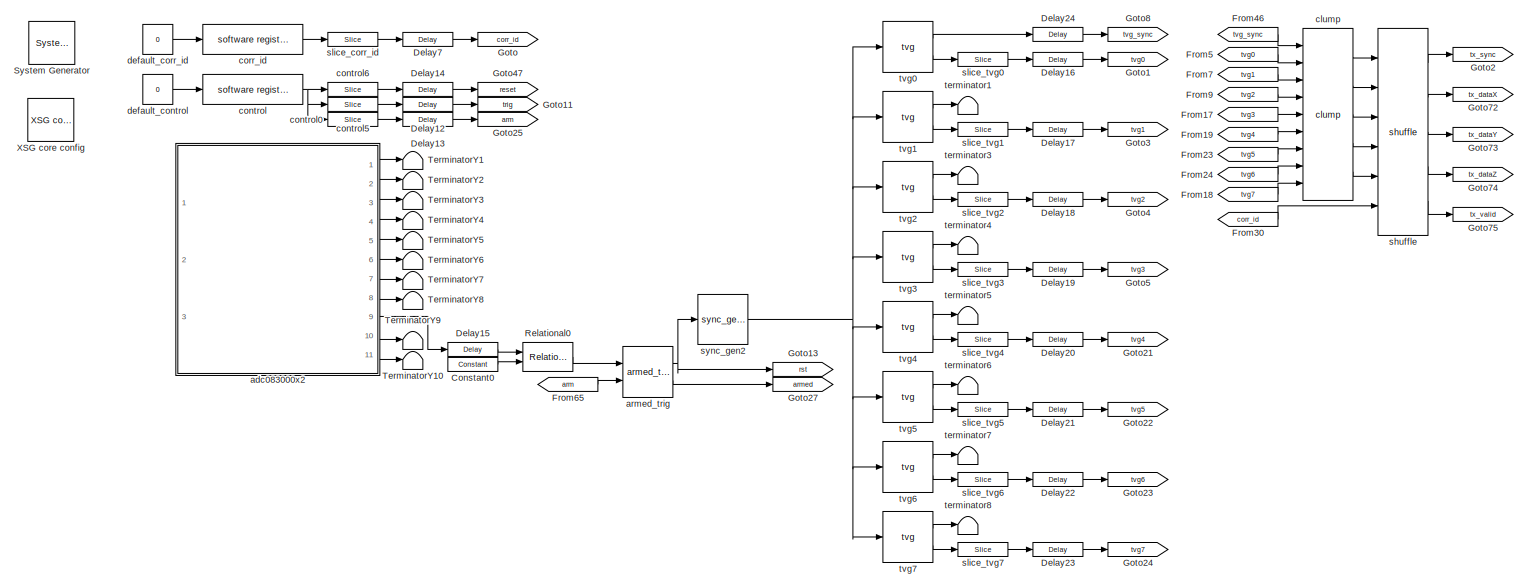
[diagram: root canvas - part 1/2, left side, full height]
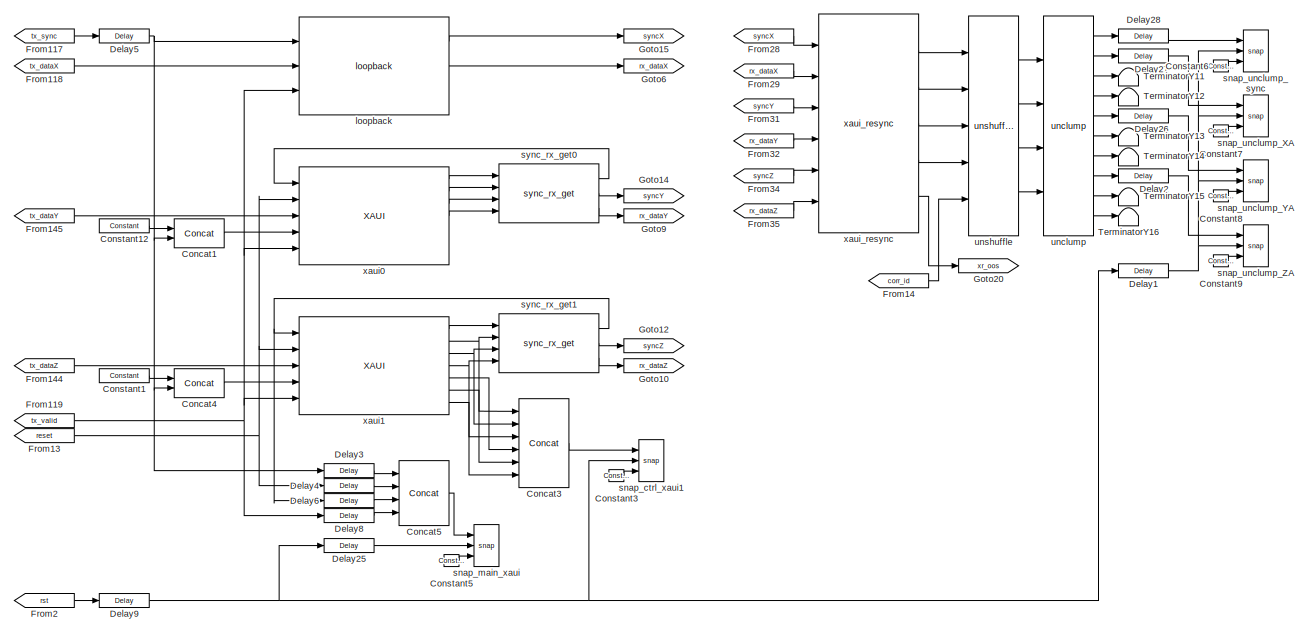
[diagram: root canvas - part 2/2, right side, full height]
MODEL demo_interconnect
KIND model
BLOCK [Reference]  System Generator  REF=xbsIndex_r4/ System Generator
  AttributesFormatString = System\\nGenerator
  FunctionWithSeparateData = off
  Ports = []
  RTWMemSecDataConstants = Inherit from model
  RTWMemSecDataInternal = Inherit from model
  RTWMemSecDataParameters = Inherit from model
  RTWMemSecFuncExecute = Inherit from model
  RTWMemSecFuncInitTerm = Inherit from model
  SID = 1
  ShowPortLabels = FromPortIcon
  SourceBlock = xbsIndex_r4/ System Generator
  SourceType = Xilinx System Generator Block
  SystemSampleTime = -1
  Tag = genX
  UserData = DataTag0
  UserDataPersistent = on
  block_type = sysgen
  block_version = 10.1.1
  clock_wrapper = Clock Enables
  core_generation = According to Block Masks
  dbl_ovrd = According to Block Masks
  dcm_input_clock_period = 100
  deprecated_control = off
  directory = ./demo_interconnect/sysgen
  eval_field = 0
  has_advanced_control = 0
  incr_netlist = off
  infoedit = System Generator
  package = ff1136
  part = xc5vsx95t
  run_coregen = off
  sg_icon_stat = 46,43,-1,-1,red,beige,0,07734,right
  sg_mask_display = fprintf('','COMMENT: begin icon graphics');\npatch([0 46 46 0 ],[0 0 43 43 ],[0.93 0.92 0.86]);\npatch([11 4 14 4 11 22 25 28 40 30 21 14 23 14 21 30 40 28 25 22 11 ],[5 12 22 32 39 39 36 39 39 29 38 31 22 13 6 15 5 5 8 5 5 ],[0.6 0.2 0.25]);\nplot([0 46 46 0 0 ],[0 0 43 43 0 ]);\nfprintf('','COMMENT: end icon graphics');\nfprintf('','COMMENT: begin icon text');\nfprintf('','COMMENT: end icon text...<+5ch>
  sggui_pos = -1,-1,-1,-1
  simulink_period = 1
  speed = -1
  synthesis_tool = XST
  sysclk_period = 5
  testbench = off
  trim_vbits = Everywhere in SubSystem
  xilinxfamily = virtex5
BLOCK [Reference] Concat1  REF=xbsIndex_r4/Concat
  Ports = [2, 1]
  SID = 557
  SourceBlock = xbsIndex_r4/Concat
  SourceType = Xilinx Bus Concatenator Block
  block_type = concat
  block_version = 11.3
  dbl_ovrd = off
  has_advanced_control = 0
  infoedit = Concatenates two or more inputs.  Output will be cast to an unsigned value with the binary point at zero.
  num_inputs = 2
  sg_icon_stat = 50,29,2,1,white,blue,0,97b7e8d2,right,
  sg_mask_display = fprintf('','COMMENT: begin icon graphics');\npatch([0 1 1 0 ],[0 0 1 1 ],[0.77 0.82 0.91]);\npatch([0.34 0.24 0.38 0.24 0.34 0.5 0.54 0.58 0.74 0.62 0.5 0.4 0.54 0.4 0.5 0.62 0.74 0.58 0.54 0.5 0.34 ],[0.103448 0.275862 0.517241 0.758621 0.931034 0.931034 0.862069 0.931034 0.931034 0.724138 0.931034 0.758621 0.517241 0.275862 0.103448 0.310345 0.103448 0.103448 0.172414 0.103448 0.103448 ],[0.98 0...<+258ch>
  sggui_pos = 20,20,328,272
BLOCK [Reference] Concat3  REF=xbsIndex_r4/Concat
  Ports = [6, 1]
  SID = 513
  SourceBlock = xbsIndex_r4/Concat
  SourceType = Xilinx Bus Concatenator Block
  block_type = concat
  block_version = 11.3
  dbl_ovrd = off
  has_advanced_control = 0
  infoedit = Concatenates two or more inputs.  Output will be cast to an unsigned value with the binary point at zero.
  num_inputs = 6
  sg_icon_stat = 50,89,6,1,white,blue,0,d0d135ea,right,
  sg_mask_display = fprintf('','COMMENT: begin icon graphics');\npatch([0 1 1 0 ],[0 0 1 1 ],[0.77 0.82 0.91]);\npatch([0.22 0.06 0.3 0.06 0.22 0.48 0.56 0.64 0.92 0.7 0.48 0.32 0.56 0.32 0.48 0.7 0.92 0.64 0.56 0.48 0.22 ],[0.280899 0.370787 0.505618 0.640449 0.730337 0.730337 0.685393 0.730337 0.730337 0.606742 0.730337 0.640449 0.505618 0.370787 0.280899 0.404494 0.280899 0.280899 0.325843 0.280899 0.280899 ],[0.9...<+261ch>
  sggui_pos = 20,20,328,272
BLOCK [Reference] Concat4  REF=xbsIndex_r4/Concat
  Ports = [2, 1]
  SID = 558
  SourceBlock = xbsIndex_r4/Concat
  SourceType = Xilinx Bus Concatenator Block
  block_type = concat
  block_version = 11.3
  dbl_ovrd = off
  has_advanced_control = 0
  infoedit = Concatenates two or more inputs.  Output will be cast to an unsigned value with the binary point at zero.
  num_inputs = 2
  sg_icon_stat = 50,29,2,1,white,blue,0,97b7e8d2,right,
  sg_mask_display = fprintf('','COMMENT: begin icon graphics');\npatch([0 1 1 0 ],[0 0 1 1 ],[0.77 0.82 0.91]);\npatch([0.34 0.24 0.38 0.24 0.34 0.5 0.54 0.58 0.74 0.62 0.5 0.4 0.54 0.4 0.5 0.62 0.74 0.58 0.54 0.5 0.34 ],[0.103448 0.275862 0.517241 0.758621 0.931034 0.931034 0.862069 0.931034 0.931034 0.724138 0.931034 0.758621 0.517241 0.275862 0.103448 0.310345 0.103448 0.103448 0.172414 0.103448 0.103448 ],[0.98 0...<+258ch>
  sggui_pos = 20,20,328,272
BLOCK [Reference] Concat5  REF=xbsIndex_r4/Concat
  Ports = [4, 1]
  SID = 595
  SourceBlock = xbsIndex_r4/Concat
  SourceType = Xilinx Bus Concatenator Block
  block_type = concat
  block_version = 11.3
  dbl_ovrd = off
  has_advanced_control = 0
  infoedit = Concatenates two or more inputs.  Output will be cast to an unsigned value with the binary point at zero.
  num_inputs = 4
  sg_icon_stat = 50,65,4,1,white,blue,0,47b26f1b,right,
  sg_mask_display = fprintf('','COMMENT: begin icon graphics');\npatch([0 1 1 0 ],[0 0 1 1 ],[0.77 0.82 0.91]);\npatch([0.22 0.06 0.3 0.06 0.22 0.48 0.56 0.64 0.92 0.7 0.48 0.32 0.56 0.32 0.48 0.7 0.92 0.64 0.56 0.48 0.22 ],[0.2 0.323077 0.507692 0.692308 0.815385 0.815385 0.753846 0.815385 0.815385 0.646154 0.815385 0.692308 0.507692 0.323077 0.2 0.369231 0.2 0.2 0.261538 0.2 0.2 ],[0.98 0.96 0.92]);\nplot([0 1 1 0 ...<+231ch>
  sggui_pos = 20,20,328,272
BLOCK [Reference] Constant0  REF=xbsIndex_r4/Constant
  Ports = [0, 1]
  SID = 451
  SourceBlock = xbsIndex_r4/Constant
  SourceType = Xilinx Constant Block Block
  arith_type = Unsigned
  bin_pt = 0
  block_type = constant
  block_version = 10.1.3
  carry = CIN
  const = 0
  dbl_ovrd = off
  dsp48_infoedit = The use of this block for DSP48 instructions is deprecated.  Please use the Opmode block.
  equ = P=C
  explicit_period = on
  has_advanced_control = 0
  inp1 = P
  inp2 = PCIN>>17
  n_bits = 4
  opr = +
  opselect = C
  period = 1
  sg_icon_stat = 50,14,0,1,white,blue,0,bf4ddd8b,right,
  sg_list_contents = {'table'=>{'carry'=>'popup(0|1|CIN|~SIGN(P or PCIN)|~SIGN(A*B or A:B)|~SIGND(A*B or A:B))','inp1'=>'popup(0|P|A:B|A*B|C|P+C|A:B+C)','inp2'=>'popup(0|PCIN|P|C|PCIN>>17|P>>17)','opselect'=>'popup(C + A*B|PCIN + A*B|P + A*B|A * B|C + A:B|C - A:B|C|Custom)','userSelections'=>{'carry'=>'CIN','inp1'=>'P','inp2'=>'PCIN>>17','opselect'=>'C'}}}
  sg_mask_display = fprintf('','COMMENT: begin icon graphics');\npatch([0 1 1 0 ],[0 0 1 1 ],[0.77 0.82 0.91]);\npatch([0.42 0.38 0.44 0.38 0.42 0.5 0.52 0.54 0.62 0.56 0.5 0.46 0.52 0.46 0.5 0.56 0.62 0.54 0.52 0.5 0.42 ],[0.142857 0.285714 0.5 0.714286 0.857143 0.857143 0.785714 0.857143 0.857143 0.642857 0.857143 0.714286 0.5 0.285714 0.142857 0.357143 0.142857 0.142857 0.214286 0.142857 0.142857 ],[0.98 0.96 0.92...<+206ch>  <repeated x3 — deduplicated; at blocks: Constant0, Constant1, Constant12>
  sggui_pos = 95,381,400,346
BLOCK [Reference] Constant1  REF=xbsIndex_r4/Constant
  Ports = [0, 1]
  SID = 559
  SourceBlock = xbsIndex_r4/Constant
  SourceType = Xilinx Constant Block Block
  arith_type = Unsigned
  bin_pt = 0
  block_type = constant
  block_version = 10.1.1
  carry = CIN
  const = 0
  dbl_ovrd = off
  dsp48_infoedit = The use of this block for DSP48 instructions is deprecated.  Please use the Opmode block.
  equ = P=C
  explicit_period = on
  has_advanced_control = 0
  inp1 = P
  inp2 = PCIN>>17
  n_bits = 3
  opr = +
  opselect = C
  period = 1
  sg_icon_stat = 50,14,0,1,white,blue,0,bf4ddd8b,right,
  sggui_pos = 20,20,554,541
BLOCK [Reference] Constant12  REF=xbsIndex_r4/Constant
  Ports = [0, 1]
  SID = 560
  SourceBlock = xbsIndex_r4/Constant
  SourceType = Xilinx Constant Block Block
  arith_type = Unsigned
  bin_pt = 0
  block_type = constant
  block_version = 10.1.1
  carry = CIN
  const = 0
  dbl_ovrd = off
  dsp48_infoedit = The use of this block for DSP48 instructions is deprecated.  Please use the Opmode block.
  equ = P=C
  explicit_period = on
  has_advanced_control = 0
  inp1 = P
  inp2 = PCIN>>17
  n_bits = 3
  opr = +
  opselect = C
  period = 1
  sg_icon_stat = 50,14,0,1,white,blue,0,bf4ddd8b,right,
  sggui_pos = 20,20,554,541
BLOCK [Reference] Constant3  REF=xbsIndex_r4/Constant
  Ports = [0, 1]
  SID = 528
  SourceBlock = xbsIndex_r4/Constant
  SourceType = Xilinx Constant Block Block
  arith_type = Boolean
  bin_pt = 0
  block_type = constant
  block_version = 10.1.1
  carry = CIN
  const = 1
  dbl_ovrd = off
  dsp48_infoedit = The use of this block for DSP48 instructions is deprecated.  Please use the Opmode block.
  equ = P=C
  explicit_period = on
  has_advanced_control = 0
  inp1 = P
  inp2 = PCIN>>17
  n_bits = 1
  opr = +
  opselect = C
  period = 1
  sg_icon_stat = 15,12,0,1,white,blue,0,1c72b5be,right,
  sg_mask_display = fprintf('','COMMENT: begin icon graphics');\npatch([0 1 1 0 ],[0 0 1 1 ],[0.77 0.82 0.91]);\npatch([0.266667 0.133333 0.333333 0.133333 0.266667 0.466667 0.533333 0.6 0.8 0.6 0.4 0.266667 0.466667 0.266667 0.4 0.6 0.8 0.6 0.533333 0.466667 0.266667 ],[0.0833333 0.25 0.5 0.75 0.916667 0.916667 0.833333 0.916667 0.916667 0.666667 0.916667 0.75 0.5 0.25 0.0833333 0.333333 0.0833333 0.0833333 0.166667...<+244ch>  <repeated x6 — deduplicated; at blocks: Constant3, Constant5, Constant6, Constant7, Constant8, Constant9>
  sggui_pos = -1,-1,-1,-1
BLOCK [Reference] Constant5  REF=xbsIndex_r4/Constant
  Ports = [0, 1]
  SID = 593
  SourceBlock = xbsIndex_r4/Constant
  SourceType = Xilinx Constant Block Block
  arith_type = Boolean
  bin_pt = 0
  block_type = constant
  block_version = 10.1.1
  carry = CIN
  const = 1
  dbl_ovrd = off
  dsp48_infoedit = The use of this block for DSP48 instructions is deprecated.  Please use the Opmode block.
  equ = P=C
  explicit_period = on
  has_advanced_control = 0
  inp1 = P
  inp2 = PCIN>>17
  n_bits = 1
  opr = +
  opselect = C
  period = 1
  sg_icon_stat = 15,12,0,1,white,blue,0,1c72b5be,right,
  sggui_pos = -1,-1,-1,-1
BLOCK [Reference] Constant6  REF=xbsIndex_r4/Constant
  Ports = [0, 1]
  SID = 606
  SourceBlock = xbsIndex_r4/Constant
  SourceType = Xilinx Constant Block Block
  arith_type = Boolean
  bin_pt = 0
  block_type = constant
  block_version = 10.1.1
  carry = CIN
  const = 1
  dbl_ovrd = off
  dsp48_infoedit = The use of this block for DSP48 instructions is deprecated.  Please use the Opmode block.
  equ = P=C
  explicit_period = on
  has_advanced_control = 0
  inp1 = P
  inp2 = PCIN>>17
  n_bits = 1
  opr = +
  opselect = C
  period = 1
  sg_icon_stat = 15,12,0,1,white,blue,0,1c72b5be,right,
  sggui_pos = -1,-1,-1,-1
BLOCK [Reference] Constant7  REF=xbsIndex_r4/Constant
  Ports = [0, 1]
  SID = 608
  SourceBlock = xbsIndex_r4/Constant
  SourceType = Xilinx Constant Block Block
  arith_type = Boolean
  bin_pt = 0
  block_type = constant
  block_version = 10.1.1
  carry = CIN
  const = 1
  dbl_ovrd = off
  dsp48_infoedit = The use of this block for DSP48 instructions is deprecated.  Please use the Opmode block.
  equ = P=C
  explicit_period = on
  has_advanced_control = 0
  inp1 = P
  inp2 = PCIN>>17
  n_bits = 1
  opr = +
  opselect = C
  period = 1
  sg_icon_stat = 15,12,0,1,white,blue,0,1c72b5be,right,
  sggui_pos = -1,-1,-1,-1
BLOCK [Reference] Constant8  REF=xbsIndex_r4/Constant
  Ports = [0, 1]
  SID = 610
  SourceBlock = xbsIndex_r4/Constant
  SourceType = Xilinx Constant Block Block
  arith_type = Boolean
  bin_pt = 0
  block_type = constant
  block_version = 10.1.1
  carry = CIN
  const = 1
  dbl_ovrd = off
  dsp48_infoedit = The use of this block for DSP48 instructions is deprecated.  Please use the Opmode block.
  equ = P=C
  explicit_period = on
  has_advanced_control = 0
  inp1 = P
  inp2 = PCIN>>17
  n_bits = 1
  opr = +
  opselect = C
  period = 1
  sg_icon_stat = 15,12,0,1,white,blue,0,1c72b5be,right,
  sggui_pos = -1,-1,-1,-1
BLOCK [Reference] Constant9  REF=xbsIndex_r4/Constant
  Ports = [0, 1]
  SID = 612
  SourceBlock = xbsIndex_r4/Constant
  SourceType = Xilinx Constant Block Block
  arith_type = Boolean
  bin_pt = 0
  block_type = constant
  block_version = 10.1.1
  carry = CIN
  const = 1
  dbl_ovrd = off
  dsp48_infoedit = The use of this block for DSP48 instructions is deprecated.  Please use the Opmode block.
  equ = P=C
  explicit_period = on
  has_advanced_control = 0
  inp1 = P
  inp2 = PCIN>>17
  n_bits = 1
  opr = +
  opselect = C
  period = 1
  sg_icon_stat = 15,12,0,1,white,blue,0,1c72b5be,right,
  sggui_pos = -1,-1,-1,-1
BLOCK [Reference] Delay1  REF=xbsIndex_r4/Delay
  Ports = [1, 1]
  SID = 614
  SourceBlock = xbsIndex_r4/Delay
  SourceType = Xilinx Delay Block
  block_type = delay
  block_version = 10.1.3
  dbl_ovrd = off
  en = off
  has_advanced_control = 0
  infoedit = Hardware notes: A delay line is a chain, each link of which is an SRL16 followed by a flip-flop.
  latency = 1028
  reg_retiming = off
  sg_icon_stat = 50,14,1,1,white,blue,0,1b80ac73,right,
  sg_mask_display = fprintf('','COMMENT: begin icon graphics');\npatch([0 1 1 0 ],[0 0 1 1 ],[0.77 0.82 0.91]);\npatch([0.42 0.38 0.44 0.38 0.42 0.5 0.52 0.54 0.62 0.56 0.5 0.46 0.52 0.46 0.5 0.56 0.62 0.54 0.52 0.5 0.42 ],[0.142857 0.285714 0.5 0.714286 0.857143 0.857143 0.785714 0.857143 0.857143 0.642857 0.857143 0.714286 0.5 0.285714 0.142857 0.357143 0.142857 0.142857 0.214286 0.142857 0.142857 ],[0.98 0.96 0.92...<+212ch>
  sggui_pos = 0,0,419,315
  xl_area = [0,0,0,0,0,0,0]
  xl_use_area = off
BLOCK [Reference] Delay12  REF=xbsIndex_r4/Delay
  Ports = [1, 1]
  SID = 440
  SourceBlock = xbsIndex_r4/Delay
  SourceType = Xilinx Delay Block
  block_type = delay
  block_version = 10.1.3
  dbl_ovrd = off
  en = off
  has_advanced_control = 0
  infoedit = Hardware notes: A delay line is a chain, each link of which is an SRL16 followed by a flip-flop.
  latency = 1
  reg_retiming = on
  sg_icon_stat = 50,14,1,1,white,blue,0,07b98262,right,
  sg_mask_display = fprintf('','COMMENT: begin icon graphics');\npatch([0 1 1 0 ],[0 0 1 1 ],[0.77 0.82 0.91]);\npatch([0.42 0.38 0.44 0.38 0.42 0.5 0.52 0.54 0.62 0.56 0.5 0.46 0.52 0.46 0.5 0.56 0.62 0.54 0.52 0.5 0.42 ],[0.142857 0.285714 0.5 0.714286 0.857143 0.857143 0.785714 0.857143 0.857143 0.642857 0.857143 0.714286 0.5 0.285714 0.142857 0.357143 0.142857 0.142857 0.214286 0.142857 0.142857 ],[0.98 0.96 0.92...<+209ch>  <repeated x25 — deduplicated; at blocks: Delay12, Delay13, Delay14, Delay15, Delay16, Delay17, Delay18, Delay19, Delay2, Delay20, Delay21, Delay22, Delay23, Delay24, Delay25, Delay26, +9 more>
  sggui_pos = 20,20,543,392
  xl_area = [0,0,0,0,0,0,0]
  xl_use_area = off
BLOCK [Reference] Delay13  REF=xbsIndex_r4/Delay
  Ports = [1, 1]
  SID = 441
  SourceBlock = xbsIndex_r4/Delay
  SourceType = Xilinx Delay Block
  block_type = delay
  block_version = 10.1.3
  dbl_ovrd = off
  en = off
  has_advanced_control = 0
  infoedit = Hardware notes: A delay line is a chain, each link of which is an SRL16 followed by a flip-flop.
  latency = 1
  reg_retiming = on
  sg_icon_stat = 50,14,1,1,white,blue,0,07b98262,right,
  sggui_pos = 20,20,543,392
  xl_area = [0,0,0,0,0,0,0]
  xl_use_area = off
BLOCK [Reference] Delay14  REF=xbsIndex_r4/Delay
  Ports = [1, 1]
  SID = 442
  SourceBlock = xbsIndex_r4/Delay
  SourceType = Xilinx Delay Block
  block_type = delay
  block_version = 10.1.3
  dbl_ovrd = off
  en = off
  has_advanced_control = 0
  infoedit = Hardware notes: A delay line is a chain, each link of which is an SRL16 followed by a flip-flop.
  latency = 1
  reg_retiming = on
  sg_icon_stat = 50,14,1,1,white,blue,0,07b98262,right,
  sggui_pos = 20,20,543,392
  xl_area = [0,0,0,0,0,0,0]
  xl_use_area = off
BLOCK [Reference] Delay15  REF=xbsIndex_r4/Delay
  Ports = [1, 1]
  SID = 452
  SourceBlock = xbsIndex_r4/Delay
  SourceType = Xilinx Delay Block
  block_type = delay
  block_version = 10.1.3
  dbl_ovrd = off
  en = off
  has_advanced_control = 0
  infoedit = Hardware notes: A delay line is a chain, each link of which is an SRL16 followed by a flip-flop.
  latency = 1
  reg_retiming = on
  sg_icon_stat = 50,14,1,1,white,blue,0,07b98262,right,
  sggui_pos = 20,20,543,392
  xl_area = [0,0,0,0,0,0,0]
  xl_use_area = off
BLOCK [Reference] Delay16  REF=xbsIndex_r4/Delay
  Ports = [1, 1]
  SID = 471
  SourceBlock = xbsIndex_r4/Delay
  SourceType = Xilinx Delay Block
  block_type = delay
  block_version = 10.1.3
  dbl_ovrd = off
  en = off
  has_advanced_control = 0
  infoedit = Hardware notes: A delay line is a chain, each link of which is an SRL16 followed by a flip-flop.
  latency = 1
  reg_retiming = on
  sg_icon_stat = 50,14,1,1,white,blue,0,07b98262,right,
  sggui_pos = 20,20,543,392
  xl_area = [0,0,0,0,0,0,0]
  xl_use_area = off
BLOCK [Reference] Delay17  REF=xbsIndex_r4/Delay
  Ports = [1, 1]
  SID = 472
  SourceBlock = xbsIndex_r4/Delay
  SourceType = Xilinx Delay Block
  block_type = delay
  block_version = 10.1.3
  dbl_ovrd = off
  en = off
  has_advanced_control = 0
  infoedit = Hardware notes: A delay line is a chain, each link of which is an SRL16 followed by a flip-flop.
  latency = 1
  reg_retiming = on
  sg_icon_stat = 50,14,1,1,white,blue,0,07b98262,right,
  sggui_pos = 20,20,543,392
  xl_area = [0,0,0,0,0,0,0]
  xl_use_area = off
BLOCK [Reference] Delay18  REF=xbsIndex_r4/Delay
  Ports = [1, 1]
  SID = 473
  SourceBlock = xbsIndex_r4/Delay
  SourceType = Xilinx Delay Block
  block_type = delay
  block_version = 10.1.3
  dbl_ovrd = off
  en = off
  has_advanced_control = 0
  infoedit = Hardware notes: A delay line is a chain, each link of which is an SRL16 followed by a flip-flop.
  latency = 1
  reg_retiming = on
  sg_icon_stat = 50,14,1,1,white,blue,0,07b98262,right,
  sggui_pos = 20,20,543,392
  xl_area = [0,0,0,0,0,0,0]
  xl_use_area = off
BLOCK [Reference] Delay19  REF=xbsIndex_r4/Delay
  Ports = [1, 1]
  SID = 474
  SourceBlock = xbsIndex_r4/Delay
  SourceType = Xilinx Delay Block
  block_type = delay
  block_version = 10.1.3
  dbl_ovrd = off
  en = off
  has_advanced_control = 0
  infoedit = Hardware notes: A delay line is a chain, each link of which is an SRL16 followed by a flip-flop.
  latency = 1
  reg_retiming = on
  sg_icon_stat = 50,14,1,1,white,blue,0,07b98262,right,
  sggui_pos = 20,20,543,392
  xl_area = [0,0,0,0,0,0,0]
  xl_use_area = off
BLOCK [Reference] Delay2  REF=xbsIndex_r4/Delay
  Ports = [1, 1]
  SID = 621
  SourceBlock = xbsIndex_r4/Delay
  SourceType = Xilinx Delay Block
  block_type = delay
  block_version = 10.1.3
  dbl_ovrd = off
  en = off
  has_advanced_control = 0
  infoedit = Hardware notes: A delay line is a chain, each link of which is an SRL16 followed by a flip-flop.
  latency = 1
  reg_retiming = on
  sg_icon_stat = 50,14,1,1,white,blue,0,07b98262,right,
  sggui_pos = 0,0,419,315
  xl_area = [0,0,0,0,0,0,0]
  xl_use_area = off
BLOCK [Reference] Delay20  REF=xbsIndex_r4/Delay
  Ports = [1, 1]
  SID = 475
  SourceBlock = xbsIndex_r4/Delay
  SourceType = Xilinx Delay Block
  block_type = delay
  block_version = 10.1.3
  dbl_ovrd = off
  en = off
  has_advanced_control = 0
  infoedit = Hardware notes: A delay line is a chain, each link of which is an SRL16 followed by a flip-flop.
  latency = 1
  reg_retiming = on
  sg_icon_stat = 50,14,1,1,white,blue,0,07b98262,right,
  sggui_pos = 20,20,543,392
  xl_area = [0,0,0,0,0,0,0]
  xl_use_area = off
BLOCK [Reference] Delay21  REF=xbsIndex_r4/Delay
  Ports = [1, 1]
  SID = 476
  SourceBlock = xbsIndex_r4/Delay
  SourceType = Xilinx Delay Block
  block_type = delay
  block_version = 10.1.3
  dbl_ovrd = off
  en = off
  has_advanced_control = 0
  infoedit = Hardware notes: A delay line is a chain, each link of which is an SRL16 followed by a flip-flop.
  latency = 1
  reg_retiming = on
  sg_icon_stat = 50,14,1,1,white,blue,0,07b98262,right,
  sggui_pos = 20,20,543,392
  xl_area = [0,0,0,0,0,0,0]
  xl_use_area = off
BLOCK [Reference] Delay22  REF=xbsIndex_r4/Delay
  Ports = [1, 1]
  SID = 477
  SourceBlock = xbsIndex_r4/Delay
  SourceType = Xilinx Delay Block
  block_type = delay
  block_version = 10.1.3
  dbl_ovrd = off
  en = off
  has_advanced_control = 0
  infoedit = Hardware notes: A delay line is a chain, each link of which is an SRL16 followed by a flip-flop.
  latency = 1
  reg_retiming = on
  sg_icon_stat = 50,14,1,1,white,blue,0,07b98262,right,
  sggui_pos = 20,20,543,392
  xl_area = [0,0,0,0,0,0,0]
  xl_use_area = off
BLOCK [Reference] Delay23  REF=xbsIndex_r4/Delay
  Ports = [1, 1]
  SID = 478
  SourceBlock = xbsIndex_r4/Delay
  SourceType = Xilinx Delay Block
  block_type = delay
  block_version = 10.1.3
  dbl_ovrd = off
  en = off
  has_advanced_control = 0
  infoedit = Hardware notes: A delay line is a chain, each link of which is an SRL16 followed by a flip-flop.
  latency = 1
  reg_retiming = on
  sg_icon_stat = 50,14,1,1,white,blue,0,07b98262,right,
  sggui_pos = 20,20,543,392
  xl_area = [0,0,0,0,0,0,0]
  xl_use_area = off
BLOCK [Reference] Delay24  REF=xbsIndex_r4/Delay
  Ports = [1, 1]
  SID = 479
  SourceBlock = xbsIndex_r4/Delay
  SourceType = Xilinx Delay Block
  block_type = delay
  block_version = 10.1.3
  dbl_ovrd = off
  en = off
  has_advanced_control = 0
  infoedit = Hardware notes: A delay line is a chain, each link of which is an SRL16 followed by a flip-flop.
  latency = 1
  reg_retiming = on
  sg_icon_stat = 50,14,1,1,white,blue,0,07b98262,right,
  sggui_pos = 20,20,543,392
  xl_area = [0,0,0,0,0,0,0]
  xl_use_area = off
BLOCK [Reference] Delay25  REF=xbsIndex_r4/Delay
  Ports = [1, 1]
  SID = 603
  SourceBlock = xbsIndex_r4/Delay
  SourceType = Xilinx Delay Block
  block_type = delay
  block_version = 10.1.3
  dbl_ovrd = off
  en = off
  has_advanced_control = 0
  infoedit = Hardware notes: A delay line is a chain, each link of which is an SRL16 followed by a flip-flop.
  latency = 1
  reg_retiming = on
  sg_icon_stat = 50,14,1,1,white,blue,0,07b98262,right,
  sggui_pos = 0,0,419,315
  xl_area = [0,0,0,0,0,0,0]
  xl_use_area = off
BLOCK [Reference] Delay26  REF=xbsIndex_r4/Delay
  Ports = [1, 1]
  SID = 622
  SourceBlock = xbsIndex_r4/Delay
  SourceType = Xilinx Delay Block
  block_type = delay
  block_version = 10.1.3
  dbl_ovrd = off
  en = off
  has_advanced_control = 0
  infoedit = Hardware notes: A delay line is a chain, each link of which is an SRL16 followed by a flip-flop.
  latency = 1
  reg_retiming = on
  sg_icon_stat = 50,14,1,1,white,blue,0,07b98262,right,
  sggui_pos = 0,0,419,315
  xl_area = [0,0,0,0,0,0,0]
  xl_use_area = off
BLOCK [Reference] Delay27  REF=xbsIndex_r4/Delay
  Ports = [1, 1]
  SID = 623
  SourceBlock = xbsIndex_r4/Delay
  SourceType = Xilinx Delay Block
  block_type = delay
  block_version = 10.1.3
  dbl_ovrd = off
  en = off
  has_advanced_control = 0
  infoedit = Hardware notes: A delay line is a chain, each link of which is an SRL16 followed by a flip-flop.
  latency = 1
  reg_retiming = on
  sg_icon_stat = 50,14,1,1,white,blue,0,07b98262,right,
  sggui_pos = 0,0,419,315
  xl_area = [0,0,0,0,0,0,0]
  xl_use_area = off
BLOCK [Reference] Delay28  REF=xbsIndex_r4/Delay
  Ports = [1, 1]
  SID = 624
  SourceBlock = xbsIndex_r4/Delay
  SourceType = Xilinx Delay Block
  block_type = delay
  block_version = 10.1.3
  dbl_ovrd = off
  en = off
  has_advanced_control = 0
  infoedit = Hardware notes: A delay line is a chain, each link of which is an SRL16 followed by a flip-flop.
  latency = 1
  reg_retiming = on
  sg_icon_stat = 50,14,1,1,white,blue,0,07b98262,right,
  sggui_pos = 0,0,419,315
  xl_area = [0,0,0,0,0,0,0]
  xl_use_area = off
BLOCK [Reference] Delay3  REF=xbsIndex_r4/Delay
  Ports = [1, 1]
  SID = 599
  SourceBlock = xbsIndex_r4/Delay
  SourceType = Xilinx Delay Block
  block_type = delay
  block_version = 10.1.3
  dbl_ovrd = off
  en = off
  has_advanced_control = 0
  infoedit = Hardware notes: A delay line is a chain, each link of which is an SRL16 followed by a flip-flop.
  latency = 1
  reg_retiming = on
  sg_icon_stat = 50,14,1,1,white,blue,0,07b98262,right,
  sggui_pos = 0,0,419,315
  xl_area = [0,0,0,0,0,0,0]
  xl_use_area = off
BLOCK [Reference] Delay4  REF=xbsIndex_r4/Delay
  Ports = [1, 1]
  SID = 600
  SourceBlock = xbsIndex_r4/Delay
  SourceType = Xilinx Delay Block
  block_type = delay
  block_version = 10.1.3
  dbl_ovrd = off
  en = off
  has_advanced_control = 0
  infoedit = Hardware notes: A delay line is a chain, each link of which is an SRL16 followed by a flip-flop.
  latency = 1
  reg_retiming = on
  sg_icon_stat = 50,14,1,1,white,blue,0,07b98262,right,
  sggui_pos = 0,0,419,315
  xl_area = [0,0,0,0,0,0,0]
  xl_use_area = off
BLOCK [Reference] Delay5  REF=xbsIndex_r4/Delay
  Ports = [1, 1]
  SID = 561
  SourceBlock = xbsIndex_r4/Delay
  SourceType = Xilinx Delay Block
  block_type = delay
  block_version = 10.1.3
  dbl_ovrd = off
  en = off
  has_advanced_control = 0
  infoedit = Hardware notes: A delay line is a chain, each link of which is an SRL16 followed by a flip-flop.
  latency = 1
  reg_retiming = on
  sg_icon_stat = 50,14,1,1,white,blue,0,07b98262,right,
  sggui_pos = 20,20,348,255
  xl_area = [0,0,0,0,0,0,0]
  xl_use_area = off
BLOCK [Reference] Delay6  REF=xbsIndex_r4/Delay
  Ports = [1, 1]
  SID = 601
  SourceBlock = xbsIndex_r4/Delay
  SourceType = Xilinx Delay Block
  block_type = delay
  block_version = 10.1.3
  dbl_ovrd = off
  en = off
  has_advanced_control = 0
  infoedit = Hardware notes: A delay line is a chain, each link of which is an SRL16 followed by a flip-flop.
  latency = 1
  reg_retiming = on
  sg_icon_stat = 50,14,1,1,white,blue,0,07b98262,right,
  sggui_pos = 0,0,419,315
  xl_area = [0,0,0,0,0,0,0]
  xl_use_area = off
BLOCK [Reference] Delay7  REF=xbsIndex_r4/Delay
  Ports = [1, 1]
  SID = 434
  SourceBlock = xbsIndex_r4/Delay
  SourceType = Xilinx Delay Block
  block_type = delay
  block_version = 10.1.3
  dbl_ovrd = off
  en = off
  has_advanced_control = 0
  infoedit = Hardware notes: A delay line is a chain, each link of which is an SRL16 followed by a flip-flop.
  latency = 0
  reg_retiming = on
  sg_icon_stat = 50,14,1,1,white,blue,0,24450e6f,right,
  sggui_pos = 0,0,543,392
  xl_area = [0,0,0,0,0,0,0]
  xl_use_area = off
BLOCK [Reference] Delay8  REF=xbsIndex_r4/Delay
  Ports = [1, 1]
  SID = 602
  SourceBlock = xbsIndex_r4/Delay
  SourceType = Xilinx Delay Block
  block_type = delay
  block_version = 10.1.3
  dbl_ovrd = off
  en = off
  has_advanced_control = 0
  infoedit = Hardware notes: A delay line is a chain, each link of which is an SRL16 followed by a flip-flop.
  latency = 1
  reg_retiming = on
  sg_icon_stat = 50,14,1,1,white,blue,0,07b98262,right,
  sggui_pos = 0,0,419,315
  xl_area = [0,0,0,0,0,0,0]
  xl_use_area = off
BLOCK [Reference] Delay9  REF=xbsIndex_r4/Delay
  Ports = [1, 1]
  SID = 639
  SourceBlock = xbsIndex_r4/Delay
  SourceType = Xilinx Delay Block
  block_type = delay
  block_version = 10.1.3
  dbl_ovrd = off
  en = off
  has_advanced_control = 0
  infoedit = Hardware notes: A delay line is a chain, each link of which is an SRL16 followed by a flip-flop.
  latency = 6
  reg_retiming = on
  sg_icon_stat = 50,14,1,1,white,blue,0,aa5bc30d,right,
  sggui_pos = 0,0,419,315
  xl_area = [0,0,0,0,0,0,0]
  xl_use_area = off
BLOCK [From] From117
  CloseFcn = tagdialog Close
  GotoTag = tx_sync
  SID = 562
BLOCK [From] From118
  CloseFcn = tagdialog Close
  GotoTag = tx_dataX
  SID = 563
BLOCK [From] From119
  CloseFcn = tagdialog Close
  GotoTag = tx_valid
  SID = 564
BLOCK [From] From13
  CloseFcn = tagdialog Close
  GotoTag = reset
  SID = 565
BLOCK [From] From14
  CloseFcn = tagdialog Close
  GotoTag = corr_id
  SID = 424
BLOCK [From] From144
  CloseFcn = tagdialog Close
  GotoTag = tx_dataZ
  SID = 566
BLOCK [From] From145
  CloseFcn = tagdialog Close
  GotoTag = tx_dataY
  SID = 567
BLOCK [From] From17
  CloseFcn = tagdialog Close
  GotoTag = tvg3
  SID = 58
BLOCK [From] From18
  CloseFcn = tagdialog Close
  GotoTag = tvg7
  SID = 59
BLOCK [From] From19
  CloseFcn = tagdialog Close
  GotoTag = tvg4
  SID = 60
BLOCK [From] From2
  CloseFcn = tagdialog Close
  GotoTag = rst
  SID = 531
BLOCK [From] From23
  CloseFcn = tagdialog Close
  GotoTag = tvg5
  SID = 70
BLOCK [From] From24
  CloseFcn = tagdialog Close
  GotoTag = tvg6
  SID = 71
BLOCK [From] From28
  CloseFcn = tagdialog Close
  GotoTag = syncX
  SID = 75
BLOCK [From] From29
  CloseFcn = tagdialog Close
  GotoTag = rx_dataX
  SID = 76
BLOCK [From] From30
  CloseFcn = tagdialog Close
  GotoTag = corr_id
  SID = 339
BLOCK [From] From31
  CloseFcn = tagdialog Close
  GotoTag = syncY
  SID = 79
BLOCK [From] From32
  CloseFcn = tagdialog Close
  GotoTag = rx_dataY
  SID = 80
BLOCK [From] From34
  CloseFcn = tagdialog Close
  GotoTag = syncZ
  SID = 82
BLOCK [From] From35
  CloseFcn = tagdialog Close
  GotoTag = rx_dataZ
  SID = 83
BLOCK [From] From46
  CloseFcn = tagdialog Close
  GotoTag = tvg_sync
  SID = 95
BLOCK [From] From5
  CloseFcn = tagdialog Close
  GotoTag = tvg0
  SID = 99
BLOCK [From] From65
  CloseFcn = tagdialog Close
  GotoTag = arm
  SID = 114
BLOCK [From] From7
  CloseFcn = tagdialog Close
  GotoTag = tvg1
  SID = 118
BLOCK [From] From9
  CloseFcn = tagdialog Close
  GotoTag = tvg2
  SID = 137
BLOCK [Goto] Goto
  GotoTag = corr_id
  SID = 435
  TagVisibility = local
BLOCK [Goto] Goto1
  GotoTag = tvg0
  SID = 146
  TagVisibility = local
BLOCK [Goto] Goto10
  GotoTag = rx_dataZ
  SID = 398
  TagVisibility = local
BLOCK [Goto] Goto11
  GotoTag = trig
  SID = 443
  TagVisibility = local
BLOCK [Goto] Goto12
  GotoTag = syncZ
  SID = 400
  TagVisibility = local
BLOCK [Goto] Goto13
  GotoTag = rst
  SID = 433
  TagVisibility = local
BLOCK [Goto] Goto14
  GotoTag = syncY
  SID = 402
  TagVisibility = local
BLOCK [Goto] Goto15
  GotoTag = syncX
  SID = 403
  TagVisibility = local
BLOCK [Goto] Goto2
  GotoTag = tx_sync
  SID = 162
  TagVisibility = local
BLOCK [Goto] Goto20
  GotoTag = xr_oos
  SID = 163
  TagVisibility = local
BLOCK [Goto] Goto21
  GotoTag = tvg4
  SID = 164
  TagVisibility = local
BLOCK [Goto] Goto22
  GotoTag = tvg5
  SID = 165
  TagVisibility = local
BLOCK [Goto] Goto23
  GotoTag = tvg6
  SID = 166
  TagVisibility = local
BLOCK [Goto] Goto24
  GotoTag = tvg7
  SID = 167
  TagVisibility = local
BLOCK [Goto] Goto25
  GotoTag = arm
  SID = 444
  TagVisibility = local
BLOCK [Goto] Goto27
  GotoTag = armed
  SID = 170
  TagVisibility = local
BLOCK [Goto] Goto3
  GotoTag = tvg1
  SID = 173
  TagVisibility = local
BLOCK [Goto] Goto4
  GotoTag = tvg2
  SID = 184
  TagVisibility = local
BLOCK [Goto] Goto47
  GotoTag = reset
  SID = 445
  TagVisibility = local
BLOCK [Goto] Goto5
  GotoTag = tvg3
  SID = 188
  TagVisibility = local
BLOCK [Goto] Goto6
  GotoTag = rx_dataX
  SID = 394
  TagVisibility = local
BLOCK [Goto] Goto72
  GotoTag = tx_dataX
  SID = 191
  TagVisibility = local
BLOCK [Goto] Goto73
  GotoTag = tx_dataY
  SID = 192
  TagVisibility = local
BLOCK [Goto] Goto74
  GotoTag = tx_dataZ
  SID = 193
  TagVisibility = local
BLOCK [Goto] Goto75
  GotoTag = tx_valid
  SID = 194
  TagVisibility = local
BLOCK [Goto] Goto8
  GotoTag = tvg_sync
  SID = 273
  TagVisibility = local
BLOCK [Goto] Goto9
  GotoTag = rx_dataY
  SID = 396
  TagVisibility = local
BLOCK [Reference] Relational0  REF=xbsIndex_r4/Relational
  Ports = [2, 1]
  SID = 456
  SourceBlock = xbsIndex_r4/Relational
  SourceType = Xilinx Arithmetic Relational Operator Block
  block_type = relational
  block_version = 10.1.3
  dbl_ovrd = off
  en = off
  has_advanced_control = 0
  latency = 1
  mode = a!=b
  sg_icon_stat = 50,29,2,1,white,blue,0,9551bfee,right,
  sg_list_contents = {'table'=>{'mode'=>'popup(a=b|a!=b|a<b|a>b|a<=b|a>=b)','userSelections'=>{'mode'=>'a!=b'}}}
  sg_mask_display = fprintf('','COMMENT: begin icon graphics');\npatch([0 1 1 0 ],[0 0 1 1 ],[0.77 0.82 0.91]);\npatch([0.34 0.24 0.38 0.24 0.34 0.5 0.54 0.58 0.74 0.62 0.5 0.4 0.54 0.4 0.5 0.62 0.74 0.58 0.54 0.5 0.34 ],[0.103448 0.275862 0.517241 0.758621 0.931034 0.931034 0.862069 0.931034 0.931034 0.724138 0.931034 0.758621 0.517241 0.275862 0.103448 0.310345 0.103448 0.103448 0.172414 0.103448 0.103448 ],[0.98 0...<+331ch>
  sggui_pos = 0,0,419,209
  xl_area = [0, 0, 0, 0, 0, 0, 0]
  xl_use_area = off
BLOCK [Terminator] TerminatorY1
  SID = 457
BLOCK [Terminator] TerminatorY10
  SID = 458
BLOCK [Terminator] TerminatorY11
  SID = 615
BLOCK [Terminator] TerminatorY12
  SID = 616
BLOCK [Terminator] TerminatorY13
  SID = 617
BLOCK [Terminator] TerminatorY14
  SID = 618
BLOCK [Terminator] TerminatorY15
  SID = 619
BLOCK [Terminator] TerminatorY16
  SID = 620
BLOCK [Terminator] TerminatorY2
  SID = 459
BLOCK [Terminator] TerminatorY3
  SID = 460
BLOCK [Terminator] TerminatorY4
  SID = 461
BLOCK [Terminator] TerminatorY5
  SID = 462
BLOCK [Terminator] TerminatorY6
  SID = 463
BLOCK [Terminator] TerminatorY7
  SID = 464
BLOCK [Terminator] TerminatorY8
  SID = 465
BLOCK [Terminator] TerminatorY9
  SID = 466
BLOCK [Reference] XSG core config  REF=xps_library/XSG core config  (lib defined in mdl_00b5cec29cd0, mdl_02ab6ecaa3d1, +5 more)
  BEE2_ctrl_clk_src = sys_clk
  BEE2_usr_clk_src = sys_clk
  CORR_clk_src = sys_clk
  FunctionWithSeparateData = off
  Ports = []
  ROACH_clk_src = adc0_clk
  RTWMemSecDataConstants = Inherit from model
  RTWMemSecDataInternal = Inherit from model
  RTWMemSecDataParameters = Inherit from model
  RTWMemSecFuncExecute = Inherit from model
  RTWMemSecFuncInitTerm = Inherit from model
  SID = 209
  ShowPortLabels = FromPortIcon
  SourceBlock = xps_library/XSG core config
  SourceType = xsg core config
  SystemSampleTime = -1
  Tag = xps:xsg
  clk_rate = 200
  clk_src = adc0_clk
  gpio_clk_bit_index = 0
  gpio_clk_io_group = iBOB:sma
  hw_sys = ROACH:sx95t
  iBOB_clk_src = sys_clk
  ibob_linux = off
  mpc_type = powerpc440_ext
  sample_period = 1
  synthesis_tool = XST
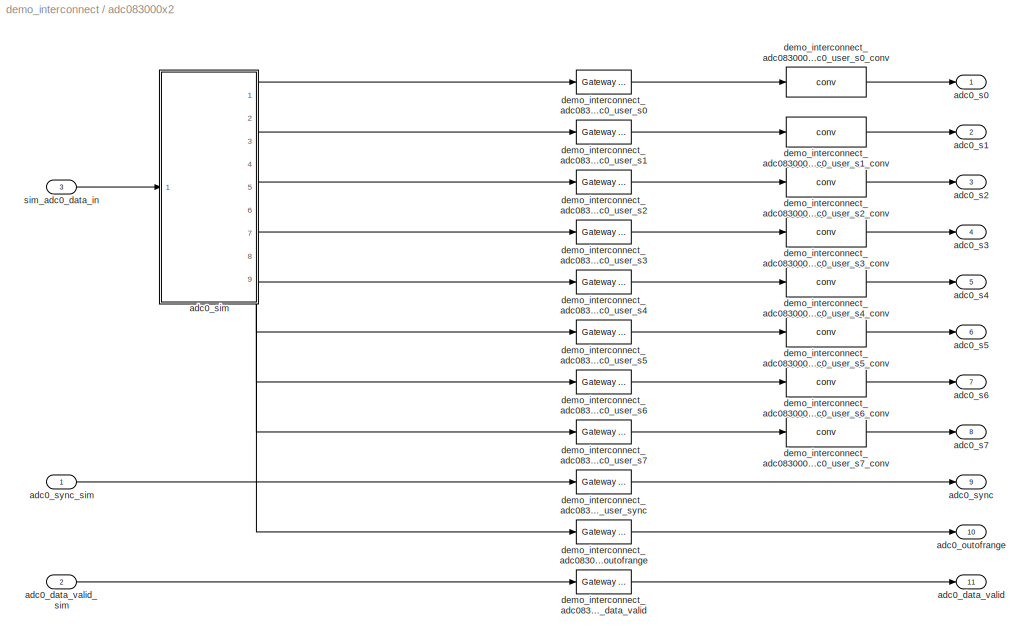
BLOCK [SubSystem] adc083000x2
  AncestorBlock = xps_library/adc083000x2
  FunctionWithSeparateData = off
  MaskCallbackString = ||||||||
  MaskDescription = The ADC block converts analog inputs to digital outputs. \nEvery clock cycle, the inputs are sampled and digitized to \n8 bit binary point numbers in the range of [-1, 1).  \n\nOnline block-specific documentation: http://casper.berkeley.edu/wiki/Adc083000
  MaskDisplay = \n
  MaskEnableString = on,on,on,on,on,on,on,on,on
  MaskHelp = eval('xlWeb([getenv(''MLIB_ROOT''), ''<path>''])')
  MaskHideContents = off
  MaskIconFrame = on
  MaskIconOpaque = on
  MaskIconRotate = none
  MaskIconUnits = autoscale
  MaskInitialization = adc083000_mask;
  MaskPortRotate = default
  MaskPromptString = Use ZD0K0?|Use ZDOK1?|Demux ADCs by 2?|Interleave 2 ADC boards?|Verbose Block Creation?|Add ports for control registers?|ADC clock rate (MHz)|Sample Period|Output Bit Width
  MaskSelfModifiable = on
  MaskStyleString = checkbox,checkbox,checkbox,checkbox,checkbox,checkbox,edit,edit,edit
  MaskToolTipString = on,on,on,on,on,on,on,on,on
  MaskTunableValueString = on,on,on,on,on,on,on,on,on
  MaskType = adc_083000x2
  MaskValueString = on|off|off|off|off|off|800|1|8
  MaskVariables = use_adc0=@1;use_adc1=@2;demux_adc=@3;clock_sync=@4;verbose=@5;using_ctrl=@6;adc_clk_rate=@7;sample_period=@8;bit_width=@9;
  MaskVisibilityString = on,on,on,on,on,on,on,on,on
  MinAlgLoopOccurrences = off
  Opaque = off
  Ports = [3, 11]
  PropExecContextOutsideSubsystem = off
  RTWSystemCode = Auto
  RequestExecContextInheritance = off
  SID = 467
  Tag = xps:adc083000x2
BLOCK [Outport] adc083000x2/adc0_data_valid
  IconDisplay = Port number
  OutDataType = sfix(16)
  OutScaling = 2^0
  Port = 11
  SID = 63
BLOCK [Inport] adc083000x2/adc0_data_valid_sim
  IconDisplay = Port number
  OutDataType = sfix(16)
  OutScaling = 2^0
  Port = 2
  SID = 2
BLOCK [Outport] adc083000x2/adc0_outofrange
  IconDisplay = Port number
  OutDataType = fixdt(1, 16)
  OutScaling = 2^0
  Port = 10
  SID = 62
BLOCK [Outport] adc083000x2/adc0_s0
  IconDisplay = Port number
  OutDataType = fixdt(1, 16)
  OutScaling = 2^0
  SID = 45
BLOCK [Outport] adc083000x2/adc0_s1
  IconDisplay = Port number
  OutDataType = fixdt(1, 16)
  OutScaling = 2^0
  Port = 2
  SID = 47
BLOCK [Outport] adc083000x2/adc0_s2
  IconDisplay = Port number
  OutDataType = fixdt(1, 16)
  OutScaling = 2^0
  Port = 3
  SID = 49
BLOCK [Outport] adc083000x2/adc0_s3
  IconDisplay = Port number
  OutDataType = fixdt(1, 16)
  OutScaling = 2^0
  Port = 4
  SID = 51
BLOCK [Outport] adc083000x2/adc0_s4
  IconDisplay = Port number
  OutDataType = fixdt(1, 16)
  OutScaling = 2^0
  Port = 5
  SID = 53
BLOCK [Outport] adc083000x2/adc0_s5
  IconDisplay = Port number
  OutDataType = fixdt(1, 16)
  OutScaling = 2^0
  Port = 6
  SID = 55
BLOCK [Outport] adc083000x2/adc0_s6
  IconDisplay = Port number
  OutDataType = fixdt(1, 16)
  OutScaling = 2^0
  Port = 7
  SID = 57
BLOCK [Outport] adc083000x2/adc0_s7
  IconDisplay = Port number
  OutDataType = fixdt(1, 16)
  OutScaling = 2^0
  Port = 8
  SID = 59
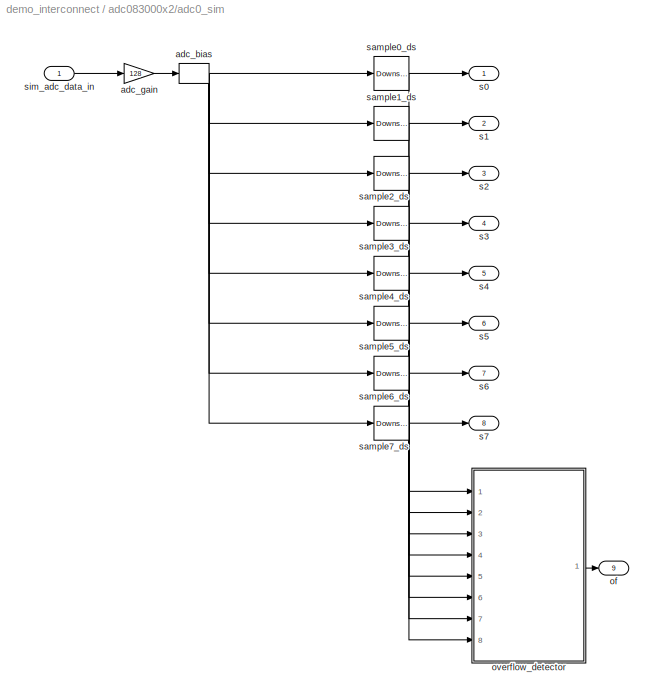
BLOCK [SubSystem] adc083000x2/adc0_sim
  AncestorBlock = xps_library/ADCs/adc_sim
  FunctionWithSeparateData = off
  MaskCallbackString = |
  MaskDescription = This block simulates the behavior of a demuxed ADC, which takes\nas input a waveform and returns digital samples in parallel at\na slower rate.  \n\nThis block is used to simulate the behavior
  MaskEnableString = on,on
  MaskHideContents = off
  MaskIconFrame = on
  MaskIconOpaque = on
  MaskIconRotate = none
  MaskIconUnits = autoscale
  MaskInitialization = adc_sim_init(gcb, ...\n    'nStreams', nStreams, ...\n    'bit_width', bit_width);
  MaskPortRotate = default
  MaskPromptString = Number of Output Streams|Sample Bit Width
  MaskStyleString = edit,edit
  MaskToolTipString = on,on
  MaskTunableValueString = on,on
  MaskType = adc_sim
  MaskValueString = 8|8
  MaskVariables = nStreams=@1;bit_width=@2;
  MaskVisibilityString = on,on
  MinAlgLoopOccurrences = off
  Opaque = off
  Ports = [1, 9]
  PropExecContextOutsideSubsystem = off
  RTWSystemCode = Auto
  RequestExecContextInheritance = off
  SID = 68
BLOCK [Bias] adc083000x2/adc0_sim/adc_bias
  Bias = 128
  SID = 16
BLOCK [Gain] adc083000x2/adc0_sim/adc_gain
  Gain = 128
  OutDataType = sfix(16)
  OutDataTypeMode = Inherit via internal rule
  OutDataTypeStr = Inherit: Inherit via internal rule
  OutScaling = 2^0
  ParamDataTypeStr = Inherit: Inherit via internal rule
  ParameterDataType = sfix(16)
  ParameterDataTypeMode = Inherit via internal rule
  ParameterScaling = 2^0
  SID = 17
  SaturateOnIntegerOverflow = off
BLOCK [Outport] adc083000x2/adc0_sim/of
  IconDisplay = Port number
  OutDataType = sfix(16)
  OutScaling = 2^0
  Port = 9
  SID = 35
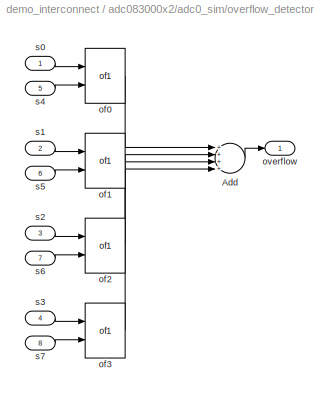
BLOCK [SubSystem] adc083000x2/adc0_sim/overflow_detector
  AncestorBlock = casper_library/Misc/of_detect_bus
  FunctionWithSeparateData = off
  MaskCallbackString = |
  MaskEnableString = on,on
  MaskHideContents = off
  MaskIconFrame = on
  MaskIconOpaque = on
  MaskIconRotate = none
  MaskIconUnits = autoscale
  MaskInitialization = adc_overflow_detector_init(gcb, ...\n    'nStreams', nStreams, ...\n    'bit_width', bit_width);
  MaskPortRotate = default
  MaskPromptString = Number of Streams|Bit Width
  MaskStyleString = edit,edit
  MaskToolTipString = on,on
  MaskTunableValueString = on,on
  MaskType = of_detect_bus
  MaskValueString = 8|8
  MaskVariables = nStreams=@1;bit_width=@2;
  MaskVisibilityString = on,on
  MinAlgLoopOccurrences = off
  Opaque = off
  Ports = [8, 1]
  PropExecContextOutsideSubsystem = off
  RTWSystemCode = Auto
  RequestExecContextInheritance = off
  SID = 18
BLOCK [Sum] adc083000x2/adc0_sim/overflow_detector/Add
  InputSameDT = off
  Inputs = ++++
  OutDataType = fixdt(1, 16)
  OutDataTypeMode = Inherit via internal rule
  OutDataTypeStr = Inherit: Inherit via internal rule
  OutScaling = 2^-10
  Ports = [4, 1]
  SID = 9
  SaturateOnIntegerOverflow = off
BLOCK [Reference] adc083000x2/adc0_sim/overflow_detector/of0  REF=casper_library/Misc/of1  (lib defined in mdl_138b2fc3435f, mdl_4ed325b712b3, +2 more)
  FunctionWithSeparateData = off
  Ports = [2, 1]
  RTWMemSecDataConstants = Inherit from model
  RTWMemSecDataInternal = Inherit from model
  RTWMemSecDataParameters = Inherit from model
  RTWMemSecFuncExecute = Inherit from model
  RTWMemSecFuncInitTerm = Inherit from model
  SID = 10
  ShowPortLabels = FromPortIcon
  SourceBlock = casper_library/Misc/of1
  SourceType = of
  SystemSampleTime = -1
  bit_num = 0
  n_adc_bits = 8
BLOCK [Reference] adc083000x2/adc0_sim/overflow_detector/of1  REF=casper_library/Misc/of1  (lib defined in mdl_138b2fc3435f, mdl_4ed325b712b3, +2 more)
  FunctionWithSeparateData = off
  Ports = [2, 1]
  RTWMemSecDataConstants = Inherit from model
  RTWMemSecDataInternal = Inherit from model
  RTWMemSecDataParameters = Inherit from model
  RTWMemSecFuncExecute = Inherit from model
  RTWMemSecFuncInitTerm = Inherit from model
  SID = 11
  ShowPortLabels = FromPortIcon
  SourceBlock = casper_library/Misc/of1
  SourceType = of
  SystemSampleTime = -1
  bit_num = 0
  n_adc_bits = 8
BLOCK [Reference] adc083000x2/adc0_sim/overflow_detector/of2  REF=casper_library/Misc/of1  (lib defined in mdl_138b2fc3435f, mdl_4ed325b712b3, +2 more)
  FunctionWithSeparateData = off
  Ports = [2, 1]
  RTWMemSecDataConstants = Inherit from model
  RTWMemSecDataInternal = Inherit from model
  RTWMemSecDataParameters = Inherit from model
  RTWMemSecFuncExecute = Inherit from model
  RTWMemSecFuncInitTerm = Inherit from model
  SID = 12
  ShowPortLabels = FromPortIcon
  SourceBlock = casper_library/Misc/of1
  SourceType = of
  SystemSampleTime = -1
  bit_num = 0
  n_adc_bits = 8
BLOCK [Reference] adc083000x2/adc0_sim/overflow_detector/of3  REF=casper_library/Misc/of1  (lib defined in mdl_138b2fc3435f, mdl_4ed325b712b3, +2 more)
  FunctionWithSeparateData = off
  Ports = [2, 1]
  RTWMemSecDataConstants = Inherit from model
  RTWMemSecDataInternal = Inherit from model
  RTWMemSecDataParameters = Inherit from model
  RTWMemSecFuncExecute = Inherit from model
  RTWMemSecFuncInitTerm = Inherit from model
  SID = 13
  ShowPortLabels = FromPortIcon
  SourceBlock = casper_library/Misc/of1
  SourceType = of
  SystemSampleTime = -1
  bit_num = 0
  n_adc_bits = 8
BLOCK [Outport] adc083000x2/adc0_sim/overflow_detector/overflow
  IconDisplay = Port number
  OutDataType = fixdt(1, 16)
  OutScaling = 2^0
  SID = 14
BLOCK [Inport] adc083000x2/adc0_sim/overflow_detector/s0
  IconDisplay = Port number
  OutDataType = fixdt(1, 16)
  OutScaling = 2^0
  SID = 1
BLOCK [Inport] adc083000x2/adc0_sim/overflow_detector/s1
  IconDisplay = Port number
  OutDataType = fixdt(1, 16)
  OutScaling = 2^0
  Port = 2
  SID = 2
BLOCK [Inport] adc083000x2/adc0_sim/overflow_detector/s2
  IconDisplay = Port number
  OutDataType = fixdt(1, 16)
  OutScaling = 2^0
  Port = 3
  SID = 3
BLOCK [Inport] adc083000x2/adc0_sim/overflow_detector/s3
  IconDisplay = Port number
  OutDataType = fixdt(1, 16)
  OutScaling = 2^0
  Port = 4
  SID = 4
BLOCK [Inport] adc083000x2/adc0_sim/overflow_detector/s4
  IconDisplay = Port number
  OutDataType = fixdt(1, 16)
  OutScaling = 2^0
  Port = 5
  SID = 5
BLOCK [Inport] adc083000x2/adc0_sim/overflow_detector/s5
  IconDisplay = Port number
  OutDataType = fixdt(1, 16)
  OutScaling = 2^0
  Port = 6
  SID = 6
BLOCK [Inport] adc083000x2/adc0_sim/overflow_detector/s6
  IconDisplay = Port number
  OutDataType = fixdt(1, 16)
  OutScaling = 2^0
  Port = 7
  SID = 7
BLOCK [Inport] adc083000x2/adc0_sim/overflow_detector/s7
  IconDisplay = Port number
  OutDataType = fixdt(1, 16)
  OutScaling = 2^0
  Port = 8
  SID = 8
BLOCK [Outport] adc083000x2/adc0_sim/s0
  IconDisplay = Port number
  OutDataType = sfix(16)
  OutScaling = 2^0
  SID = 27
BLOCK [Outport] adc083000x2/adc0_sim/s1
  IconDisplay = Port number
  OutDataType = sfix(16)
  OutScaling = 2^0
  Port = 2
  SID = 28
BLOCK [Outport] adc083000x2/adc0_sim/s2
  IconDisplay = Port number
  OutDataType = sfix(16)
  OutScaling = 2^0
  Port = 3
  SID = 29
BLOCK [Outport] adc083000x2/adc0_sim/s3
  IconDisplay = Port number
  OutDataType = sfix(16)
  OutScaling = 2^0
  Port = 4
  SID = 30
BLOCK [Outport] adc083000x2/adc0_sim/s4
  IconDisplay = Port number
  OutDataType = sfix(16)
  OutScaling = 2^0
  Port = 5
  SID = 31
BLOCK [Outport] adc083000x2/adc0_sim/s5
  IconDisplay = Port number
  OutDataType = sfix(16)
  OutScaling = 2^0
  Port = 6
  SID = 32
BLOCK [Outport] adc083000x2/adc0_sim/s6
  IconDisplay = Port number
  OutDataType = sfix(16)
  OutScaling = 2^0
  Port = 7
  SID = 33
BLOCK [Outport] adc083000x2/adc0_sim/s7
  IconDisplay = Port number
  OutDataType = sfix(16)
  OutScaling = 2^0
  Port = 8
  SID = 34
BLOCK [Reference] adc083000x2/adc0_sim/sample0_ds  REF=dspsigops/Downsample
  N = 8
  Ports = [1, 1]
  SID = 19
  SourceBlock = dspsigops/Downsample
  SourceType = Downsample
  fmode = Maintain input frame size
  ic = 0
  phase = 1
  smode = Force single rate
BLOCK [Reference] adc083000x2/adc0_sim/sample1_ds  REF=dspsigops/Downsample
  N = 8
  Ports = [1, 1]
  SID = 20
  SourceBlock = dspsigops/Downsample
  SourceType = Downsample
  fmode = Maintain input frame size
  ic = 0
  phase = 2
  smode = Force single rate
BLOCK [Reference] adc083000x2/adc0_sim/sample2_ds  REF=dspsigops/Downsample
  N = 8
  Ports = [1, 1]
  SID = 21
  SourceBlock = dspsigops/Downsample
  SourceType = Downsample
  fmode = Maintain input frame size
  ic = 0
  phase = 3
  smode = Force single rate
BLOCK [Reference] adc083000x2/adc0_sim/sample3_ds  REF=dspsigops/Downsample
  N = 8
  Ports = [1, 1]
  SID = 22
  SourceBlock = dspsigops/Downsample
  SourceType = Downsample
  fmode = Maintain input frame size
  ic = 0
  phase = 4
  smode = Force single rate
BLOCK [Reference] adc083000x2/adc0_sim/sample4_ds  REF=dspsigops/Downsample
  N = 8
  Ports = [1, 1]
  SID = 23
  SourceBlock = dspsigops/Downsample
  SourceType = Downsample
  fmode = Maintain input frame size
  ic = 0
  phase = 5
  smode = Force single rate
BLOCK [Reference] adc083000x2/adc0_sim/sample5_ds  REF=dspsigops/Downsample
  N = 8
  Ports = [1, 1]
  SID = 24
  SourceBlock = dspsigops/Downsample
  SourceType = Downsample
  fmode = Maintain input frame size
  ic = 0
  phase = 6
  smode = Force single rate
BLOCK [Reference] adc083000x2/adc0_sim/sample6_ds  REF=dspsigops/Downsample
  N = 8
  Ports = [1, 1]
  SID = 25
  SourceBlock = dspsigops/Downsample
  SourceType = Downsample
  fmode = Maintain input frame size
  ic = 0
  phase = 7
  smode = Force single rate
BLOCK [Reference] adc083000x2/adc0_sim/sample7_ds  REF=dspsigops/Downsample
  N = 8
  Ports = [1, 1]
  SID = 26
  SourceBlock = dspsigops/Downsample
  SourceType = Downsample
  fmode = Maintain input frame size
  ic = 0
  phase = 0
  smode = Force single rate
BLOCK [Inport] adc083000x2/adc0_sim/sim_adc_data_in
  IconDisplay = Port number
  OutDataType = sfix(16)
  OutScaling = 2^0
  SID = 15
BLOCK [Outport] adc083000x2/adc0_sync
  IconDisplay = Port number
  OutDataType = sfix(16)
  OutScaling = 2^0
  Port = 9
  SID = 61
BLOCK [Inport] adc083000x2/adc0_sync_sim
  IconDisplay = Port number
  OutDataType = sfix(16)
  OutScaling = 2^0
  SID = 1
BLOCK [Reference] adc083000x2/demo_interconnect_adc083000x2_adc0_user_data_valid  REF=xbsIndex_r4/Gateway In
  LOCs = {}
  Ports = [1, 1]
  SID = 88
  SourceBlock = xbsIndex_r4/Gateway In
  SourceType = Xilinx Gateway In Block
  arith_type = Unsigned
  bin_pt = 0
  block_type = gatewayin
  block_version = 11.4
  dbl_ovrd = off
  has_advanced_control = 0
  hdl_port = on
  infoedit = Gateway in block.  Converts inputs of type Simulink integer, double and fixed point to  Xilinx fixed point type.<br><br>Hardware notes:  In hardware these blocks become top level input ports.  <repeated x11 — deduplicated; at blocks: demo_interconnect_adc083000x2_adc0_user_data_va…, demo_interconnect_adc083000x2_adc0_user_outofra…, demo_interconnect_adc083000x2_adc0_user_s0, demo_interconnect_adc083000x2_adc0_user_s1, demo_interconnect_adc083000x2_adc0_user_s2, demo_interconnect_adc083000x2_adc0_user_s3, demo_interconnect_adc083000x2_adc0_user_s4, demo_interconnect_adc083000x2_adc0_user_s5, demo_interconnect_adc083000x2_adc0_user_s6, demo_interconnect_adc083000x2_adc0_user_s7, demo_interconnect_adc083000x2_adc0_user_sync>
  locs_specified = off
  n_bits = 1
  overflow = Saturate
  period = 1
  quantization = Round  (unbiased: +/- Inf)
  sg_icon_stat = 55,24,1,1,white,yellow,0,00d3666e,right,
  sg_mask_display = fprintf('','COMMENT: begin icon graphics');\npatch([0 1 1 0 ],[0 0 1 1 ],[0.95 0.93 0.65]);\npatch([0.381818 0.309091 0.418182 0.309091 0.381818 0.490909 0.527273 0.563636 0.690909 0.6 0.509091 0.436364 0.545455 0.436364 0.509091 0.6 0.690909 0.563636 0.527273 0.490909 0.381818 ],[0.125 0.291667 0.541667 0.791667 0.958333 0.958333 0.875 0.958333 0.958333 0.75 0.958333 0.791667 0.541667 0.291667 0....<+350ch>  <repeated x11 — deduplicated; at blocks: demo_interconnect_adc083000x2_adc0_user_data_va…, demo_interconnect_adc083000x2_adc0_user_outofra…, demo_interconnect_adc083000x2_adc0_user_s0, demo_interconnect_adc083000x2_adc0_user_s1, demo_interconnect_adc083000x2_adc0_user_s2, demo_interconnect_adc083000x2_adc0_user_s3, demo_interconnect_adc083000x2_adc0_user_s4, demo_interconnect_adc083000x2_adc0_user_s5, demo_interconnect_adc083000x2_adc0_user_s6, demo_interconnect_adc083000x2_adc0_user_s7, demo_interconnect_adc083000x2_adc0_user_sync>
  sggui_pos = -1,-1,-1,-1
  timing_constraint = None
  xl_area = [0,0,0,0,0,0,0]
  xl_use_area = off
BLOCK [Reference] adc083000x2/demo_interconnect_adc083000x2_adc0_user_outofrange  REF=xbsIndex_r4/Gateway In
  LOCs = {}
  Ports = [1, 1]
  SID = 86
  SourceBlock = xbsIndex_r4/Gateway In
  SourceType = Xilinx Gateway In Block
  arith_type = Unsigned
  bin_pt = 0
  block_type = gatewayin
  block_version = 11.4
  dbl_ovrd = off
  has_advanced_control = 0
  hdl_port = on
  locs_specified = off
  n_bits = 4
  overflow = Saturate
  period = 1
  quantization = Round  (unbiased: +/- Inf)
  sg_icon_stat = 55,24,1,1,white,yellow,0,00d3666e,right,
  sggui_pos = -1,-1,-1,-1
  timing_constraint = None
  xl_area = [0,0,0,0,0,0,0]
  xl_use_area = off
BLOCK [Reference] adc083000x2/demo_interconnect_adc083000x2_adc0_user_s0  REF=xbsIndex_r4/Gateway In
  LOCs = {}
  Ports = [1, 1]
  SID = 69
  SourceBlock = xbsIndex_r4/Gateway In
  SourceType = Xilinx Gateway In Block
  arith_type = Unsigned
  bin_pt = 0
  block_type = gatewayin
  block_version = 11.4
  dbl_ovrd = off
  has_advanced_control = 0
  hdl_port = on
  locs_specified = off
  n_bits = 8
  overflow = Saturate
  period = 1
  quantization = Round  (unbiased: +/- Inf)
  sg_icon_stat = 55,24,1,1,white,yellow,0,00d3666e,right,
  sggui_pos = -1,-1,-1,-1
  timing_constraint = None
  xl_area = [0,0,0,0,0,0,0]
  xl_use_area = off
BLOCK [Reference] adc083000x2/demo_interconnect_adc083000x2_adc0_user_s0_conv  REF=xps_library/ADCs/conv  (lib defined in mdl_00b5cec29cd0, mdl_02ab6ecaa3d1, +5 more)
  FunctionWithSeparateData = off
  Ports = [1, 1]
  RTWMemSecDataConstants = Inherit from model
  RTWMemSecDataInternal = Inherit from model
  RTWMemSecDataParameters = Inherit from model
  RTWMemSecFuncExecute = Inherit from model
  RTWMemSecFuncInitTerm = Inherit from model
  SID = 70
  ShowPortLabels = FromPortIcon
  SourceBlock = xps_library/ADCs/conv
  SourceType = Unknown
  SystemSampleTime = -1
  bit_width = 8
BLOCK [Reference] adc083000x2/demo_interconnect_adc083000x2_adc0_user_s1  REF=xbsIndex_r4/Gateway In
  LOCs = {}
  Ports = [1, 1]
  SID = 71
  SourceBlock = xbsIndex_r4/Gateway In
  SourceType = Xilinx Gateway In Block
  arith_type = Unsigned
  bin_pt = 0
  block_type = gatewayin
  block_version = 11.4
  dbl_ovrd = off
  has_advanced_control = 0
  hdl_port = on
  locs_specified = off
  n_bits = 8
  overflow = Saturate
  period = 1
  quantization = Round  (unbiased: +/- Inf)
  sg_icon_stat = 55,24,1,1,white,yellow,0,00d3666e,right,
  sggui_pos = -1,-1,-1,-1
  timing_constraint = None
  xl_area = [0,0,0,0,0,0,0]
  xl_use_area = off
BLOCK [Reference] adc083000x2/demo_interconnect_adc083000x2_adc0_user_s1_conv  REF=xps_library/ADCs/conv  (lib defined in mdl_00b5cec29cd0, mdl_02ab6ecaa3d1, +5 more)
  FunctionWithSeparateData = off
  Ports = [1, 1]
  RTWMemSecDataConstants = Inherit from model
  RTWMemSecDataInternal = Inherit from model
  RTWMemSecDataParameters = Inherit from model
  RTWMemSecFuncExecute = Inherit from model
  RTWMemSecFuncInitTerm = Inherit from model
  SID = 72
  ShowPortLabels = FromPortIcon
  SourceBlock = xps_library/ADCs/conv
  SourceType = Unknown
  SystemSampleTime = -1
  bit_width = 8
BLOCK [Reference] adc083000x2/demo_interconnect_adc083000x2_adc0_user_s2  REF=xbsIndex_r4/Gateway In
  LOCs = {}
  Ports = [1, 1]
  SID = 73
  SourceBlock = xbsIndex_r4/Gateway In
  SourceType = Xilinx Gateway In Block
  arith_type = Unsigned
  bin_pt = 0
  block_type = gatewayin
  block_version = 11.4
  dbl_ovrd = off
  has_advanced_control = 0
  hdl_port = on
  locs_specified = off
  n_bits = 8
  overflow = Saturate
  period = 1
  quantization = Round  (unbiased: +/- Inf)
  sg_icon_stat = 55,24,1,1,white,yellow,0,00d3666e,right,
  sggui_pos = -1,-1,-1,-1
  timing_constraint = None
  xl_area = [0,0,0,0,0,0,0]
  xl_use_area = off
BLOCK [Reference] adc083000x2/demo_interconnect_adc083000x2_adc0_user_s2_conv  REF=xps_library/ADCs/conv  (lib defined in mdl_00b5cec29cd0, mdl_02ab6ecaa3d1, +5 more)
  FunctionWithSeparateData = off
  Ports = [1, 1]
  RTWMemSecDataConstants = Inherit from model
  RTWMemSecDataInternal = Inherit from model
  RTWMemSecDataParameters = Inherit from model
  RTWMemSecFuncExecute = Inherit from model
  RTWMemSecFuncInitTerm = Inherit from model
  SID = 74
  ShowPortLabels = FromPortIcon
  SourceBlock = xps_library/ADCs/conv
  SourceType = Unknown
  SystemSampleTime = -1
  bit_width = 8
BLOCK [Reference] adc083000x2/demo_interconnect_adc083000x2_adc0_user_s3  REF=xbsIndex_r4/Gateway In
  LOCs = {}
  Ports = [1, 1]
  SID = 75
  SourceBlock = xbsIndex_r4/Gateway In
  SourceType = Xilinx Gateway In Block
  arith_type = Unsigned
  bin_pt = 0
  block_type = gatewayin
  block_version = 11.4
  dbl_ovrd = off
  has_advanced_control = 0
  hdl_port = on
  locs_specified = off
  n_bits = 8
  overflow = Saturate
  period = 1
  quantization = Round  (unbiased: +/- Inf)
  sg_icon_stat = 55,24,1,1,white,yellow,0,00d3666e,right,
  sggui_pos = -1,-1,-1,-1
  timing_constraint = None
  xl_area = [0,0,0,0,0,0,0]
  xl_use_area = off
BLOCK [Reference] adc083000x2/demo_interconnect_adc083000x2_adc0_user_s3_conv  REF=xps_library/ADCs/conv  (lib defined in mdl_00b5cec29cd0, mdl_02ab6ecaa3d1, +5 more)
  FunctionWithSeparateData = off
  Ports = [1, 1]
  RTWMemSecDataConstants = Inherit from model
  RTWMemSecDataInternal = Inherit from model
  RTWMemSecDataParameters = Inherit from model
  RTWMemSecFuncExecute = Inherit from model
  RTWMemSecFuncInitTerm = Inherit from model
  SID = 76
  ShowPortLabels = FromPortIcon
  SourceBlock = xps_library/ADCs/conv
  SourceType = Unknown
  SystemSampleTime = -1
  bit_width = 8
BLOCK [Reference] adc083000x2/demo_interconnect_adc083000x2_adc0_user_s4  REF=xbsIndex_r4/Gateway In
  LOCs = {}
  Ports = [1, 1]
  SID = 77
  SourceBlock = xbsIndex_r4/Gateway In
  SourceType = Xilinx Gateway In Block
  arith_type = Unsigned
  bin_pt = 0
  block_type = gatewayin
  block_version = 11.4
  dbl_ovrd = off
  has_advanced_control = 0
  hdl_port = on
  locs_specified = off
  n_bits = 8
  overflow = Saturate
  period = 1
  quantization = Round  (unbiased: +/- Inf)
  sg_icon_stat = 55,24,1,1,white,yellow,0,00d3666e,right,
  sggui_pos = -1,-1,-1,-1
  timing_constraint = None
  xl_area = [0,0,0,0,0,0,0]
  xl_use_area = off
BLOCK [Reference] adc083000x2/demo_interconnect_adc083000x2_adc0_user_s4_conv  REF=xps_library/ADCs/conv  (lib defined in mdl_00b5cec29cd0, mdl_02ab6ecaa3d1, +5 more)
  FunctionWithSeparateData = off
  Ports = [1, 1]
  RTWMemSecDataConstants = Inherit from model
  RTWMemSecDataInternal = Inherit from model
  RTWMemSecDataParameters = Inherit from model
  RTWMemSecFuncExecute = Inherit from model
  RTWMemSecFuncInitTerm = Inherit from model
  SID = 78
  ShowPortLabels = FromPortIcon
  SourceBlock = xps_library/ADCs/conv
  SourceType = Unknown
  SystemSampleTime = -1
  bit_width = 8
BLOCK [Reference] adc083000x2/demo_interconnect_adc083000x2_adc0_user_s5  REF=xbsIndex_r4/Gateway In
  LOCs = {}
  Ports = [1, 1]
  SID = 79
  SourceBlock = xbsIndex_r4/Gateway In
  SourceType = Xilinx Gateway In Block
  arith_type = Unsigned
  bin_pt = 0
  block_type = gatewayin
  block_version = 11.4
  dbl_ovrd = off
  has_advanced_control = 0
  hdl_port = on
  locs_specified = off
  n_bits = 8
  overflow = Saturate
  period = 1
  quantization = Round  (unbiased: +/- Inf)
  sg_icon_stat = 55,24,1,1,white,yellow,0,00d3666e,right,
  sggui_pos = -1,-1,-1,-1
  timing_constraint = None
  xl_area = [0,0,0,0,0,0,0]
  xl_use_area = off
BLOCK [Reference] adc083000x2/demo_interconnect_adc083000x2_adc0_user_s5_conv  REF=xps_library/ADCs/conv  (lib defined in mdl_00b5cec29cd0, mdl_02ab6ecaa3d1, +5 more)
  FunctionWithSeparateData = off
  Ports = [1, 1]
  RTWMemSecDataConstants = Inherit from model
  RTWMemSecDataInternal = Inherit from model
  RTWMemSecDataParameters = Inherit from model
  RTWMemSecFuncExecute = Inherit from model
  RTWMemSecFuncInitTerm = Inherit from model
  SID = 80
  ShowPortLabels = FromPortIcon
  SourceBlock = xps_library/ADCs/conv
  SourceType = Unknown
  SystemSampleTime = -1
  bit_width = 8
BLOCK [Reference] adc083000x2/demo_interconnect_adc083000x2_adc0_user_s6  REF=xbsIndex_r4/Gateway In
  LOCs = {}
  Ports = [1, 1]
  SID = 81
  SourceBlock = xbsIndex_r4/Gateway In
  SourceType = Xilinx Gateway In Block
  arith_type = Unsigned
  bin_pt = 0
  block_type = gatewayin
  block_version = 11.4
  dbl_ovrd = off
  has_advanced_control = 0
  hdl_port = on
  locs_specified = off
  n_bits = 8
  overflow = Saturate
  period = 1
  quantization = Round  (unbiased: +/- Inf)
  sg_icon_stat = 55,24,1,1,white,yellow,0,00d3666e,right,
  sggui_pos = -1,-1,-1,-1
  timing_constraint = None
  xl_area = [0,0,0,0,0,0,0]
  xl_use_area = off
BLOCK [Reference] adc083000x2/demo_interconnect_adc083000x2_adc0_user_s6_conv  REF=xps_library/ADCs/conv  (lib defined in mdl_00b5cec29cd0, mdl_02ab6ecaa3d1, +5 more)
  FunctionWithSeparateData = off
  Ports = [1, 1]
  RTWMemSecDataConstants = Inherit from model
  RTWMemSecDataInternal = Inherit from model
  RTWMemSecDataParameters = Inherit from model
  RTWMemSecFuncExecute = Inherit from model
  RTWMemSecFuncInitTerm = Inherit from model
  SID = 82
  ShowPortLabels = FromPortIcon
  SourceBlock = xps_library/ADCs/conv
  SourceType = Unknown
  SystemSampleTime = -1
  bit_width = 8
BLOCK [Reference] adc083000x2/demo_interconnect_adc083000x2_adc0_user_s7  REF=xbsIndex_r4/Gateway In
  LOCs = {}
  Ports = [1, 1]
  SID = 83
  SourceBlock = xbsIndex_r4/Gateway In
  SourceType = Xilinx Gateway In Block
  arith_type = Unsigned
  bin_pt = 0
  block_type = gatewayin
  block_version = 11.4
  dbl_ovrd = off
  has_advanced_control = 0
  hdl_port = on
  locs_specified = off
  n_bits = 8
  overflow = Saturate
  period = 1
  quantization = Round  (unbiased: +/- Inf)
  sg_icon_stat = 55,24,1,1,white,yellow,0,00d3666e,right,
  sggui_pos = -1,-1,-1,-1
  timing_constraint = None
  xl_area = [0,0,0,0,0,0,0]
  xl_use_area = off
BLOCK [Reference] adc083000x2/demo_interconnect_adc083000x2_adc0_user_s7_conv  REF=xps_library/ADCs/conv  (lib defined in mdl_00b5cec29cd0, mdl_02ab6ecaa3d1, +5 more)
  FunctionWithSeparateData = off
  Ports = [1, 1]
  RTWMemSecDataConstants = Inherit from model
  RTWMemSecDataInternal = Inherit from model
  RTWMemSecDataParameters = Inherit from model
  RTWMemSecFuncExecute = Inherit from model
  RTWMemSecFuncInitTerm = Inherit from model
  SID = 84
  ShowPortLabels = FromPortIcon
  SourceBlock = xps_library/ADCs/conv
  SourceType = Unknown
  SystemSampleTime = -1
  bit_width = 8
BLOCK [Reference] adc083000x2/demo_interconnect_adc083000x2_adc0_user_sync  REF=xbsIndex_r4/Gateway In
  LOCs = {}
  Ports = [1, 1]
  SID = 85
  SourceBlock = xbsIndex_r4/Gateway In
  SourceType = Xilinx Gateway In Block
  arith_type = Unsigned
  bin_pt = 0
  block_type = gatewayin
  block_version = 11.4
  dbl_ovrd = off
  has_advanced_control = 0
  hdl_port = on
  locs_specified = off
  n_bits = 4
  overflow = Saturate
  period = 1
  quantization = Round  (unbiased: +/- Inf)
  sg_icon_stat = 55,24,1,1,white,yellow,0,00d3666e,right,
  sggui_pos = -1,-1,-1,-1
  timing_constraint = None
  xl_area = [0,0,0,0,0,0,0]
  xl_use_area = off
BLOCK [Inport] adc083000x2/sim_adc0_data_in
  IconDisplay = Port number
  OutDataType = fixdt(1, 16)
  OutScaling = 2^0
  Port = 3
  SID = 67
BLOCK [Reference] armed_trig  REF=isi_correlator_lib/armed_trig  (lib defined in mdl_4b72aa53f299)
  FunctionWithSeparateData = off
  Ports = [2, 2]
  RTWMemSecDataConstants = Inherit from model
  RTWMemSecDataInternal = Inherit from model
  RTWMemSecDataParameters = Inherit from model
  RTWMemSecFuncExecute = Inherit from model
  RTWMemSecFuncInitTerm = Inherit from model
  SID = 210
  ShowPortLabels = FromPortIcon
  SourceBlock = isi_correlator_lib/armed_trig
  SourceType = SubSystem
  SystemSampleTime = -1
BLOCK [Reference] clump  REF=isi_correlator_lib/clump  (lib defined in mdl_4b72aa53f299)
  FunctionWithSeparateData = off
  Ports = [9, 5]
  RTWMemSecDataConstants = Inherit from model
  RTWMemSecDataInternal = Inherit from model
  RTWMemSecDataParameters = Inherit from model
  RTWMemSecFuncExecute = Inherit from model
  RTWMemSecFuncInitTerm = Inherit from model
  SID = 338
  ShowPortLabels = FromPortIcon
  SourceBlock = isi_correlator_lib/clump
  SystemSampleTime = -1
  latency = 1
BLOCK [Reference] control  REF=xps_library/software register  (lib defined in mdl_00b5cec29cd0, mdl_02ab6ecaa3d1, +5 more)
  FunctionWithSeparateData = off
  Ports = [1, 1]
  RTWMemSecDataConstants = Inherit from model
  RTWMemSecDataInternal = Inherit from model
  RTWMemSecDataParameters = Inherit from model
  RTWMemSecFuncExecute = Inherit from model
  RTWMemSecFuncInitTerm = Inherit from model
  SID = 446
  ShowPortLabels = FromPortIcon
  SourceBlock = xps_library/software register
  SystemSampleTime = -1
  Tag = xps:sw_reg
  arith_type = Unsigned
  bin_pt = 0
  bitwidth = 32
  gw_name = demo_interconnect_control_user_data_out
  io_dir = From Processor
  sample_period = 1
BLOCK [Reference] control0  REF=xbsIndex_r4/Slice
  Ports = [1, 1]
  SID = 447
  SourceBlock = xbsIndex_r4/Slice
  SourceType = Xilinx Bit Slice Extractor Block
  base0 = LSB of Input
  base1 = MSB of Input
  bit0 = 0
  bit1 = 0
  block_type = slice
  block_version = 10.1.3
  boolean_output = on
  dbl_ovrd = off
  has_advanced_control = 0
  infoedit = Extracts a given range of bits from each input sample and presents it at the output.  The output type is ordinarily unsigned with binary point at zero, but can be Boolean when the slice is one bit wide.<P><P>Hardware notes: In hardware this block costs nothing.  <repeated x4 — deduplicated; at blocks: control0, control5, control6, slice_corr_id>
  mode = Lower Bit Location + Width
  nbits = 1
  sg_icon_stat = 50,14,1,1,white,blue,0,1fd851a7,right,
  sg_mask_display = fprintf('','COMMENT: begin icon graphics');\npatch([0 1 1 0 ],[0 0 1 1 ],[0.77 0.82 0.91]);\npatch([0.42 0.38 0.44 0.38 0.42 0.5 0.52 0.54 0.62 0.56 0.5 0.46 0.52 0.46 0.5 0.56 0.62 0.54 0.52 0.5 0.42 ],[0.142857 0.285714 0.5 0.714286 0.857143 0.857143 0.785714 0.857143 0.857143 0.642857 0.857143 0.714286 0.5 0.285714 0.142857 0.357143 0.142857 0.142857 0.214286 0.142857 0.142857 ],[0.98 0.96 0.92...<+210ch>  <repeated x12 — deduplicated; at blocks: control0, control5, control6, slice_corr_id, slice_tvg0, slice_tvg1, slice_tvg2, slice_tvg3, slice_tvg4, slice_tvg5, slice_tvg6, slice_tvg7>
  sggui_pos = 20,20,449,376
BLOCK [Reference] control5  REF=xbsIndex_r4/Slice
  Ports = [1, 1]
  SID = 448
  SourceBlock = xbsIndex_r4/Slice
  SourceType = Xilinx Bit Slice Extractor Block
  base0 = LSB of Input
  base1 = MSB of Input
  bit0 = 1
  bit1 = 0
  block_type = slice
  block_version = 10.1.3
  boolean_output = on
  dbl_ovrd = off
  has_advanced_control = 0
  mode = Lower Bit Location + Width
  nbits = 1
  sg_icon_stat = 50,14,1,1,white,blue,0,1fd851a7,right,
  sggui_pos = 0,0,537,482
BLOCK [Reference] control6  REF=xbsIndex_r4/Slice
  Ports = [1, 1]
  SID = 449
  SourceBlock = xbsIndex_r4/Slice
  SourceType = Xilinx Bit Slice Extractor Block
  base0 = LSB of Input
  base1 = MSB of Input
  bit0 = 2
  bit1 = 0
  block_type = slice
  block_version = 10.1.3
  boolean_output = on
  dbl_ovrd = off
  has_advanced_control = 0
  mode = Lower Bit Location + Width
  nbits = 1
  sg_icon_stat = 50,14,1,1,white,blue,0,1fd851a7,right,
  sggui_pos = 0,0,537,482
BLOCK [Reference] corr_id  REF=xps_library/software register  (lib defined in mdl_00b5cec29cd0, mdl_02ab6ecaa3d1, +5 more)
  FunctionWithSeparateData = off
  Ports = [1, 1]
  RTWMemSecDataConstants = Inherit from model
  RTWMemSecDataInternal = Inherit from model
  RTWMemSecDataParameters = Inherit from model
  RTWMemSecFuncExecute = Inherit from model
  RTWMemSecFuncInitTerm = Inherit from model
  SID = 436
  ShowPortLabels = FromPortIcon
  SourceBlock = xps_library/software register
  SystemSampleTime = -1
  Tag = xps:sw_reg
  arith_type = Unsigned
  bin_pt = 0
  bitwidth = 32
  gw_name = demo_interconnect_corr_id_user_data_out
  io_dir = From Processor
  sample_period = 1
BLOCK [Constant] default_control
  OutDataType = sfix(16)
  OutScaling = 2^0
  SID = 450
  SampleTime = 1
  Value = 0
BLOCK [Constant] default_corr_id
  OutDataType = sfix(16)
  OutScaling = 2^0
  SID = 437
  SampleTime = 1
  Value = 0
BLOCK [Reference] loopback  REF=isi_correlator_lib/loopback  (lib defined in mdl_4b72aa53f299)
  FunctionWithSeparateData = off
  Ports = [3, 3]
  RTWMemSecDataConstants = Inherit from model
  RTWMemSecDataInternal = Inherit from model
  RTWMemSecDataParameters = Inherit from model
  RTWMemSecFuncExecute = Inherit from model
  RTWMemSecFuncInitTerm = Inherit from model
  SID = 414
  ShowPortLabels = FromPortIcon
  SourceBlock = isi_correlator_lib/loopback
  SourceType = loopback
  SystemSampleTime = -1
  delay = 8
BLOCK [Reference] shuffle  REF=isi_correlator_lib/shuffle  (lib defined in mdl_4b72aa53f299)
  FunctionWithSeparateData = off
  Ports = [6, 5]
  RTWMemSecDataConstants = Inherit from model
  RTWMemSecDataInternal = Inherit from model
  RTWMemSecDataParameters = Inherit from model
  RTWMemSecFuncExecute = Inherit from model
  RTWMemSecFuncInitTerm = Inherit from model
  SID = 332
  ShowPortLabels = FromPortIcon
  SourceBlock = isi_correlator_lib/shuffle
  SystemSampleTime = -1
  latency = 3
BLOCK [Reference] slice_corr_id  REF=xbsIndex_r4/Slice
  Ports = [1, 1]
  SID = 438
  SourceBlock = xbsIndex_r4/Slice
  SourceType = Xilinx Bit Slice Extractor Block
  base0 = LSB of Input
  base1 = MSB of Input
  bit0 = 0
  bit1 = 0
  block_type = slice
  block_version = 10.1.3
  boolean_output = off
  dbl_ovrd = off
  has_advanced_control = 0
  mode = Lower Bit Location + Width
  nbits = 2
  sg_icon_stat = 50,14,1,1,white,blue,0,1fd851a7,right,
  sggui_pos = 20,20,449,376
BLOCK [Reference] slice_tvg0  REF=xbsIndex_r4/Slice
  Ports = [1, 1]
  SID = 298
  SourceBlock = xbsIndex_r4/Slice
  SourceType = Xilinx Bit Slice Extractor Block
  base0 = LSB of Input
  base1 = MSB of Input
  bit0 = 0
  bit1 = 0
  block_type = slice
  block_version = 10.1.3
  boolean_output = off
  dbl_ovrd = off
  has_advanced_control = 0
  infoedit = Extracts a given range of bits from each input sample and presents it at the output.  The output type is ordinarily unsigned with binary point at zero, but can be Boolean when the slice is one bit wide.<br><br>Hardware notes: In hardware this block costs nothing.  <repeated x8 — deduplicated; at blocks: slice_tvg0, slice_tvg1, slice_tvg2, slice_tvg3, slice_tvg4, slice_tvg5, slice_tvg6, slice_tvg7>
  mode = Lower Bit Location + Width
  nbits = 8
  sg_icon_stat = 50,14,1,1,white,blue,0,1fd851a7,right,
  sggui_pos = 20,20,631,621
BLOCK [Reference] slice_tvg1  REF=xbsIndex_r4/Slice
  Ports = [1, 1]
  SID = 299
  SourceBlock = xbsIndex_r4/Slice
  SourceType = Xilinx Bit Slice Extractor Block
  base0 = LSB of Input
  base1 = MSB of Input
  bit0 = 0
  bit1 = 0
  block_type = slice
  block_version = 10.1.3
  boolean_output = off
  dbl_ovrd = off
  has_advanced_control = 0
  mode = Lower Bit Location + Width
  nbits = 8
  sg_icon_stat = 50,14,1,1,white,blue,0,1fd851a7,right,
  sggui_pos = 20,20,631,621
BLOCK [Reference] slice_tvg2  REF=xbsIndex_r4/Slice
  Ports = [1, 1]
  SID = 300
  SourceBlock = xbsIndex_r4/Slice
  SourceType = Xilinx Bit Slice Extractor Block
  base0 = LSB of Input
  base1 = MSB of Input
  bit0 = 0
  bit1 = 0
  block_type = slice
  block_version = 10.1.3
  boolean_output = off
  dbl_ovrd = off
  has_advanced_control = 0
  mode = Lower Bit Location + Width
  nbits = 8
  sg_icon_stat = 50,14,1,1,white,blue,0,1fd851a7,right,
  sggui_pos = 20,20,631,621
BLOCK [Reference] slice_tvg3  REF=xbsIndex_r4/Slice
  Ports = [1, 1]
  SID = 301
  SourceBlock = xbsIndex_r4/Slice
  SourceType = Xilinx Bit Slice Extractor Block
  base0 = LSB of Input
  base1 = MSB of Input
  bit0 = 0
  bit1 = 0
  block_type = slice
  block_version = 10.1.3
  boolean_output = off
  dbl_ovrd = off
  has_advanced_control = 0
  mode = Lower Bit Location + Width
  nbits = 8
  sg_icon_stat = 50,14,1,1,white,blue,0,1fd851a7,right,
  sggui_pos = 20,20,631,621
BLOCK [Reference] slice_tvg4  REF=xbsIndex_r4/Slice
  Ports = [1, 1]
  SID = 302
  SourceBlock = xbsIndex_r4/Slice
  SourceType = Xilinx Bit Slice Extractor Block
  base0 = LSB of Input
  base1 = MSB of Input
  bit0 = 0
  bit1 = 0
  block_type = slice
  block_version = 10.1.3
  boolean_output = off
  dbl_ovrd = off
  has_advanced_control = 0
  mode = Lower Bit Location + Width
  nbits = 8
  sg_icon_stat = 50,14,1,1,white,blue,0,1fd851a7,right,
  sggui_pos = 20,20,631,621
BLOCK [Reference] slice_tvg5  REF=xbsIndex_r4/Slice
  Ports = [1, 1]
  SID = 303
  SourceBlock = xbsIndex_r4/Slice
  SourceType = Xilinx Bit Slice Extractor Block
  base0 = LSB of Input
  base1 = MSB of Input
  bit0 = 0
  bit1 = 0
  block_type = slice
  block_version = 10.1.3
  boolean_output = off
  dbl_ovrd = off
  has_advanced_control = 0
  mode = Lower Bit Location + Width
  nbits = 8
  sg_icon_stat = 50,14,1,1,white,blue,0,1fd851a7,right,
  sggui_pos = 20,20,631,621
BLOCK [Reference] slice_tvg6  REF=xbsIndex_r4/Slice
  Ports = [1, 1]
  SID = 304
  SourceBlock = xbsIndex_r4/Slice
  SourceType = Xilinx Bit Slice Extractor Block
  base0 = LSB of Input
  base1 = MSB of Input
  bit0 = 0
  bit1 = 0
  block_type = slice
  block_version = 10.1.3
  boolean_output = off
  dbl_ovrd = off
  has_advanced_control = 0
  mode = Lower Bit Location + Width
  nbits = 8
  sg_icon_stat = 50,14,1,1,white,blue,0,1fd851a7,right,
  sggui_pos = 20,20,631,621
BLOCK [Reference] slice_tvg7  REF=xbsIndex_r4/Slice
  Ports = [1, 1]
  SID = 305
  SourceBlock = xbsIndex_r4/Slice
  SourceType = Xilinx Bit Slice Extractor Block
  base0 = LSB of Input
  base1 = MSB of Input
  bit0 = 0
  bit1 = 0
  block_type = slice
  block_version = 10.1.3
  boolean_output = off
  dbl_ovrd = off
  has_advanced_control = 0
  mode = Lower Bit Location + Width
  nbits = 8
  sg_icon_stat = 50,14,1,1,white,blue,0,1fd851a7,right,
  sggui_pos = 20,20,631,621
BLOCK [Reference] snap_ctrl_xaui1  REF=casper_library/Scopes/snap  (lib defined in mdl_138b2fc3435f, mdl_4ed325b712b3, +2 more)
  FunctionWithSeparateData = off
  Ports = [3]
  RTWMemSecDataConstants = Inherit from model
  RTWMemSecDataInternal = Inherit from model
  RTWMemSecDataParameters = Inherit from model
  RTWMemSecFuncExecute = Inherit from model
  RTWMemSecFuncInitTerm = Inherit from model
  SID = 516
  ShowPortLabels = FromPortIcon
  SourceBlock = casper_library/Scopes/snap
  SourceType = snap
  SystemSampleTime = -1
  nsamples = 13
BLOCK [Reference] snap_main_xaui  REF=casper_library/Scopes/snap  (lib defined in mdl_138b2fc3435f, mdl_4ed325b712b3, +2 more)
  FunctionWithSeparateData = off
  Ports = [3]
  RTWMemSecDataConstants = Inherit from model
  RTWMemSecDataInternal = Inherit from model
  RTWMemSecDataParameters = Inherit from model
  RTWMemSecFuncExecute = Inherit from model
  RTWMemSecFuncInitTerm = Inherit from model
  SID = 594
  ShowPortLabels = FromPortIcon
  SourceBlock = casper_library/Scopes/snap
  SourceType = snap
  SystemSampleTime = -1
  nsamples = 13
BLOCK [Reference] snap_unclump_XA  REF=casper_library/Scopes/snap  (lib defined in mdl_138b2fc3435f, mdl_4ed325b712b3, +2 more)
  FunctionWithSeparateData = off
  Ports = [3]
  RTWMemSecDataConstants = Inherit from model
  RTWMemSecDataInternal = Inherit from model
  RTWMemSecDataParameters = Inherit from model
  RTWMemSecFuncExecute = Inherit from model
  RTWMemSecFuncInitTerm = Inherit from model
  SID = 609
  ShowPortLabels = FromPortIcon
  SourceBlock = casper_library/Scopes/snap
  SourceType = snap
  SystemSampleTime = -1
  nsamples = 13
BLOCK [Reference] snap_unclump_YA  REF=casper_library/Scopes/snap  (lib defined in mdl_138b2fc3435f, mdl_4ed325b712b3, +2 more)
  FunctionWithSeparateData = off
  Ports = [3]
  RTWMemSecDataConstants = Inherit from model
  RTWMemSecDataInternal = Inherit from model
  RTWMemSecDataParameters = Inherit from model
  RTWMemSecFuncExecute = Inherit from model
  RTWMemSecFuncInitTerm = Inherit from model
  SID = 611
  ShowPortLabels = FromPortIcon
  SourceBlock = casper_library/Scopes/snap
  SourceType = snap
  SystemSampleTime = -1
  nsamples = 13
BLOCK [Reference] snap_unclump_ZA  REF=casper_library/Scopes/snap  (lib defined in mdl_138b2fc3435f, mdl_4ed325b712b3, +2 more)
  FunctionWithSeparateData = off
  Ports = [3]
  RTWMemSecDataConstants = Inherit from model
  RTWMemSecDataInternal = Inherit from model
  RTWMemSecDataParameters = Inherit from model
  RTWMemSecFuncExecute = Inherit from model
  RTWMemSecFuncInitTerm = Inherit from model
  SID = 613
  ShowPortLabels = FromPortIcon
  SourceBlock = casper_library/Scopes/snap
  SourceType = snap
  SystemSampleTime = -1
  nsamples = 13
BLOCK [Reference] snap_unclump_sync  REF=casper_library/Scopes/snap  (lib defined in mdl_138b2fc3435f, mdl_4ed325b712b3, +2 more)
  FunctionWithSeparateData = off
  Ports = [3]
  RTWMemSecDataConstants = Inherit from model
  RTWMemSecDataInternal = Inherit from model
  RTWMemSecDataParameters = Inherit from model
  RTWMemSecFuncExecute = Inherit from model
  RTWMemSecFuncInitTerm = Inherit from model
  SID = 607
  ShowPortLabels = FromPortIcon
  SourceBlock = casper_library/Scopes/snap
  SourceType = snap
  SystemSampleTime = -1
  nsamples = 13
BLOCK [Reference] sync_gen2  REF=isi_correlator_lib/sync_gen2  (lib defined in mdl_4b72aa53f299)
  FunctionWithSeparateData = off
  Ports = [1, 1]
  RTWMemSecDataConstants = Inherit from model
  RTWMemSecDataInternal = Inherit from model
  RTWMemSecDataParameters = Inherit from model
  RTWMemSecFuncExecute = Inherit from model
  RTWMemSecFuncInitTerm = Inherit from model
  SID = 260
  ShowPortLabels = FromPortIcon
  SourceBlock = isi_correlator_lib/sync_gen2
  SourceType = sync_gen2
  SystemSampleTime = -1
  UserData = DataTag1
  UserDataPersistent = on
BLOCK [Reference] sync_rx_get0  REF=isi_correlator_lib/sync_rx_get  (lib defined in mdl_4b72aa53f299)
  FunctionWithSeparateData = off
  Ports = [4, 3]
  RTWMemSecDataConstants = Inherit from model
  RTWMemSecDataInternal = Inherit from model
  RTWMemSecDataParameters = Inherit from model
  RTWMemSecFuncExecute = Inherit from model
  RTWMemSecFuncInitTerm = Inherit from model
  SID = 637
  ShowPortLabels = FromPortIcon
  SourceBlock = isi_correlator_lib/sync_rx_get
  SourceType = SubSystem
  SystemSampleTime = -1
BLOCK [Reference] sync_rx_get1  REF=isi_correlator_lib/sync_rx_get  (lib defined in mdl_4b72aa53f299)
  FunctionWithSeparateData = off
  Ports = [4, 3]
  RTWMemSecDataConstants = Inherit from model
  RTWMemSecDataInternal = Inherit from model
  RTWMemSecDataParameters = Inherit from model
  RTWMemSecFuncExecute = Inherit from model
  RTWMemSecFuncInitTerm = Inherit from model
  SID = 636
  ShowPortLabels = FromPortIcon
  SourceBlock = isi_correlator_lib/sync_rx_get
  SourceType = SubSystem
  SystemSampleTime = -1
BLOCK [Terminator] terminator1
  SID = 274
BLOCK [Terminator] terminator3
  SID = 275
BLOCK [Terminator] terminator4
  SID = 292
BLOCK [Terminator] terminator5
  SID = 293
BLOCK [Terminator] terminator6
  SID = 294
BLOCK [Terminator] terminator7
  SID = 295
BLOCK [Terminator] terminator8
  SID = 296
BLOCK [Reference] tvg0  REF=isi_correlator_lib/tvg  (lib defined in mdl_4b72aa53f299)
  FunctionWithSeparateData = off
  Ports = [1, 2]
  RTWMemSecDataConstants = Inherit from model
  RTWMemSecDataInternal = Inherit from model
  RTWMemSecDataParameters = Inherit from model
  RTWMemSecFuncExecute = Inherit from model
  RTWMemSecFuncInitTerm = Inherit from model
  SID = 266
  ShowPortLabels = FromPortIcon
  SourceBlock = isi_correlator_lib/tvg
  SystemSampleTime = -1
  addr_width = 11
BLOCK [Reference] tvg1  REF=isi_correlator_lib/tvg  (lib defined in mdl_4b72aa53f299)
  FunctionWithSeparateData = off
  Ports = [1, 2]
  RTWMemSecDataConstants = Inherit from model
  RTWMemSecDataInternal = Inherit from model
  RTWMemSecDataParameters = Inherit from model
  RTWMemSecFuncExecute = Inherit from model
  RTWMemSecFuncInitTerm = Inherit from model
  SID = 269
  ShowPortLabels = FromPortIcon
  SourceBlock = isi_correlator_lib/tvg
  SystemSampleTime = -1
  addr_width = 11
BLOCK [Reference] tvg2  REF=isi_correlator_lib/tvg  (lib defined in mdl_4b72aa53f299)
  FunctionWithSeparateData = off
  Ports = [1, 2]
  RTWMemSecDataConstants = Inherit from model
  RTWMemSecDataInternal = Inherit from model
  RTWMemSecDataParameters = Inherit from model
  RTWMemSecFuncExecute = Inherit from model
  RTWMemSecFuncInitTerm = Inherit from model
  SID = 270
  ShowPortLabels = FromPortIcon
  SourceBlock = isi_correlator_lib/tvg
  SystemSampleTime = -1
  addr_width = 11
BLOCK [Reference] tvg3  REF=isi_correlator_lib/tvg  (lib defined in mdl_4b72aa53f299)
  FunctionWithSeparateData = off
  Ports = [1, 2]
  RTWMemSecDataConstants = Inherit from model
  RTWMemSecDataInternal = Inherit from model
  RTWMemSecDataParameters = Inherit from model
  RTWMemSecFuncExecute = Inherit from model
  RTWMemSecFuncInitTerm = Inherit from model
  SID = 279
  ShowPortLabels = FromPortIcon
  SourceBlock = isi_correlator_lib/tvg
  SystemSampleTime = -1
  addr_width = 11
BLOCK [Reference] tvg4  REF=isi_correlator_lib/tvg  (lib defined in mdl_4b72aa53f299)
  FunctionWithSeparateData = off
  Ports = [1, 2]
  RTWMemSecDataConstants = Inherit from model
  RTWMemSecDataInternal = Inherit from model
  RTWMemSecDataParameters = Inherit from model
  RTWMemSecFuncExecute = Inherit from model
  RTWMemSecFuncInitTerm = Inherit from model
  SID = 280
  ShowPortLabels = FromPortIcon
  SourceBlock = isi_correlator_lib/tvg
  SystemSampleTime = -1
  addr_width = 11
BLOCK [Reference] tvg5  REF=isi_correlator_lib/tvg  (lib defined in mdl_4b72aa53f299)
  FunctionWithSeparateData = off
  Ports = [1, 2]
  RTWMemSecDataConstants = Inherit from model
  RTWMemSecDataInternal = Inherit from model
  RTWMemSecDataParameters = Inherit from model
  RTWMemSecFuncExecute = Inherit from model
  RTWMemSecFuncInitTerm = Inherit from model
  SID = 281
  ShowPortLabels = FromPortIcon
  SourceBlock = isi_correlator_lib/tvg
  SystemSampleTime = -1
  addr_width = 11
BLOCK [Reference] tvg6  REF=isi_correlator_lib/tvg  (lib defined in mdl_4b72aa53f299)
  FunctionWithSeparateData = off
  Ports = [1, 2]
  RTWMemSecDataConstants = Inherit from model
  RTWMemSecDataInternal = Inherit from model
  RTWMemSecDataParameters = Inherit from model
  RTWMemSecFuncExecute = Inherit from model
  RTWMemSecFuncInitTerm = Inherit from model
  SID = 290
  ShowPortLabels = FromPortIcon
  SourceBlock = isi_correlator_lib/tvg
  SystemSampleTime = -1
  addr_width = 11
BLOCK [Reference] tvg7  REF=isi_correlator_lib/tvg  (lib defined in mdl_4b72aa53f299)
  FunctionWithSeparateData = off
  Ports = [1, 2]
  RTWMemSecDataConstants = Inherit from model
  RTWMemSecDataInternal = Inherit from model
  RTWMemSecDataParameters = Inherit from model
  RTWMemSecFuncExecute = Inherit from model
  RTWMemSecFuncInitTerm = Inherit from model
  SID = 291
  ShowPortLabels = FromPortIcon
  SourceBlock = isi_correlator_lib/tvg
  SystemSampleTime = -1
  addr_width = 11
BLOCK [Reference] unclump  REF=isi_correlator_lib/unclump  (lib defined in mdl_4b72aa53f299)
  FunctionWithSeparateData = off
  Ports = [4, 10]
  RTWMemSecDataConstants = Inherit from model
  RTWMemSecDataInternal = Inherit from model
  RTWMemSecDataParameters = Inherit from model
  RTWMemSecFuncExecute = Inherit from model
  RTWMemSecFuncInitTerm = Inherit from model
  SID = 423
  ShowPortLabels = FromPortIcon
  SourceBlock = isi_correlator_lib/unclump
  SystemSampleTime = -1
  latency = 1
BLOCK [Reference] unshuffle  REF=isi_correlator_lib/unshuffle  (lib defined in mdl_4b72aa53f299)
  FunctionWithSeparateData = off
  Ports = [5, 4]
  RTWMemSecDataConstants = Inherit from model
  RTWMemSecDataInternal = Inherit from model
  RTWMemSecDataParameters = Inherit from model
  RTWMemSecFuncExecute = Inherit from model
  RTWMemSecFuncInitTerm = Inherit from model
  SID = 331
  ShowPortLabels = FromPortIcon
  SourceBlock = isi_correlator_lib/unshuffle
  SystemSampleTime = -1
  latency = 3
BLOCK [Reference] xaui0  REF=xps_library/XAUI  (lib defined in mdl_00b5cec29cd0, mdl_02ab6ecaa3d1, +5 more)
  FunctionWithSeparateData = off
  Ports = [5, 7]
  RTWMemSecDataConstants = Inherit from model
  RTWMemSecDataInternal = Inherit from model
  RTWMemSecDataParameters = Inherit from model
  RTWMemSecFuncExecute = Inherit from model
  RTWMemSecFuncInitTerm = Inherit from model
  SID = 418
  ShowPortLabels = FromPortIcon
  SourceBlock = xps_library/XAUI
  SourceType = xaui
  SystemSampleTime = -1
  Tag = xps:xaui
  demux = 2
  open_phy = off
  port = ROACH:0
  pre_emph = 3
  show_param = off
  swing = 800
BLOCK [Reference] xaui1  REF=xps_library/XAUI  (lib defined in mdl_00b5cec29cd0, mdl_02ab6ecaa3d1, +5 more)
  FunctionWithSeparateData = off
  Ports = [5, 7]
  RTWMemSecDataConstants = Inherit from model
  RTWMemSecDataInternal = Inherit from model
  RTWMemSecDataParameters = Inherit from model
  RTWMemSecFuncExecute = Inherit from model
  RTWMemSecFuncInitTerm = Inherit from model
  SID = 419
  ShowPortLabels = FromPortIcon
  SourceBlock = xps_library/XAUI
  SourceType = xaui
  SystemSampleTime = -1
  Tag = xps:xaui
  demux = 2
  open_phy = off
  port = ROACH:1
  pre_emph = 3
  show_param = off
  swing = 800
BLOCK [Reference] xaui_resync  REF=isi_correlator_lib/xaui_resync  (lib defined in mdl_4b72aa53f299)
  FunctionWithSeparateData = off
  Ports = [6, 5]
  RTWMemSecDataConstants = Inherit from model
  RTWMemSecDataInternal = Inherit from model
  RTWMemSecDataParameters = Inherit from model
  RTWMemSecFuncExecute = Inherit from model
  RTWMemSecFuncInitTerm = Inherit from model
  SID = 422
  ShowPortLabels = FromPortIcon
  SourceBlock = isi_correlator_lib/xaui_resync
  SourceType = link_demux
  SystemSampleTime = -1
  buffer_depth = 10
  logic_latency = 1
LINE Concat1:1 -> xaui0:4
LINE Concat3:1 -> snap_ctrl_xaui1:1
LINE Concat4:1 -> xaui1:4
LINE Concat5:1 -> snap_main_xaui:1
LINE Constant0:1 -> Relational0:2
LINE Constant12:1 -> Concat1:1
LINE Constant1:1 -> Concat4:1
LINE Constant3:1 -> snap_ctrl_xaui1:3
LINE Constant5:1 -> snap_main_xaui:3
LINE Constant6:1 -> snap_unclump_sync:3
LINE Constant7:1 -> snap_unclump_XA:3
LINE Constant8:1 -> snap_unclump_YA:3
LINE Constant9:1 -> snap_unclump_ZA:3
LINE Delay12:1 -> Goto11:1
LINE Delay13:1 -> Goto25:1
LINE Delay14:1 -> Goto47:1
LINE Delay15:1 -> Relational0:1
LINE Delay16:1 -> Goto1:1
LINE Delay17:1 -> Goto3:1
LINE Delay18:1 -> Goto4:1
LINE Delay19:1 -> Goto5:1
NET Delay1:1 -> snap_unclump_XA:2, snap_unclump_YA:2, snap_unclump_ZA:2, snap_unclump_sync:2
LINE Delay20:1 -> Goto21:1
LINE Delay21:1 -> Goto22:1
LINE Delay22:1 -> Goto23:1
LINE Delay23:1 -> Goto24:1
LINE Delay24:1 -> Goto8:1
LINE Delay25:1 -> snap_main_xaui:2
LINE Delay26:1 -> snap_unclump_YA:1
LINE Delay27:1 -> snap_unclump_XA:1
LINE Delay28:1 -> snap_unclump_sync:1
LINE Delay2:1 -> snap_unclump_ZA:1
LINE Delay3:1 -> Concat5:1
LINE Delay4:1 -> Concat5:2
NET Delay5:1 -> Concat1:2, Concat4:2, Delay3:1, loopback:1
LINE Delay6:1 -> Concat5:3
LINE Delay7:1 -> Goto:1
LINE Delay8:1 -> Concat5:4
NET Delay9:1 -> Delay1:1, Delay25:1, snap_ctrl_xaui1:2
LINE From117:1 -> Delay5:1
LINE From118:1 -> loopback:2
NET From119:1 -> Delay8:1, loopback:3, xaui0:5, xaui1:5
NET From13:1 -> Delay4:1, xaui0:2, xaui1:2
LINE From144:1 -> xaui1:3
LINE From145:1 -> xaui0:3
LINE From14:1 -> unshuffle:5
LINE From17:1 -> clump:5
LINE From18:1 -> clump:9
LINE From19:1 -> clump:6
LINE From23:1 -> clump:7
LINE From24:1 -> clump:8
LINE From28:1 -> xaui_resync:1
LINE From29:1 -> xaui_resync:2
LINE From2:1 -> Delay9:1
LINE From30:1 -> shuffle:6
LINE From31:1 -> xaui_resync:3
LINE From32:1 -> xaui_resync:4
LINE From34:1 -> xaui_resync:5
LINE From35:1 -> xaui_resync:6
LINE From46:1 -> clump:1
LINE From5:1 -> clump:2
LINE From65:1 -> armed_trig:2
LINE From7:1 -> clump:3
LINE From9:1 -> clump:4
LINE Relational0:1 -> armed_trig:1
LINE adc083000x2/adc0_data_valid_sim:1 -> adc083000x2/demo_interconnect_adc083000x2_adc0_user_data_valid:1
NET adc083000x2/adc0_sim/adc_bias:1 -> adc083000x2/adc0_sim/sample0_ds:1, adc083000x2/adc0_sim/sample1_ds:1, adc083000x2/adc0_sim/sample2_ds:1, adc083000x2/adc0_sim/sample3_ds:1, adc083000x2/adc0_sim/sample4_ds:1, adc083000x2/adc0_sim/sample5_ds:1, adc083000x2/adc0_sim/sample6_ds:1, adc083000x2/adc0_sim/sample7_ds:1
LINE adc083000x2/adc0_sim/adc_gain:1 -> adc083000x2/adc0_sim/adc_bias:1
LINE adc083000x2/adc0_sim/overflow_detector/Add:1 -> adc083000x2/adc0_sim/overflow_detector/overflow:1
LINE adc083000x2/adc0_sim/overflow_detector/of0:1 -> adc083000x2/adc0_sim/overflow_detector/Add:1
LINE adc083000x2/adc0_sim/overflow_detector/of1:1 -> adc083000x2/adc0_sim/overflow_detector/Add:2
LINE adc083000x2/adc0_sim/overflow_detector/of2:1 -> adc083000x2/adc0_sim/overflow_detector/Add:3
LINE adc083000x2/adc0_sim/overflow_detector/of3:1 -> adc083000x2/adc0_sim/overflow_detector/Add:4
LINE adc083000x2/adc0_sim/overflow_detector/s0:1 -> adc083000x2/adc0_sim/overflow_detector/of0:1
LINE adc083000x2/adc0_sim/overflow_detector/s1:1 -> adc083000x2/adc0_sim/overflow_detector/of1:1
LINE adc083000x2/adc0_sim/overflow_detector/s2:1 -> adc083000x2/adc0_sim/overflow_detector/of2:1
LINE adc083000x2/adc0_sim/overflow_detector/s3:1 -> adc083000x2/adc0_sim/overflow_detector/of3:1
LINE adc083000x2/adc0_sim/overflow_detector/s4:1 -> adc083000x2/adc0_sim/overflow_detector/of0:2
LINE adc083000x2/adc0_sim/overflow_detector/s5:1 -> adc083000x2/adc0_sim/overflow_detector/of1:2
LINE adc083000x2/adc0_sim/overflow_detector/s6:1 -> adc083000x2/adc0_sim/overflow_detector/of2:2
LINE adc083000x2/adc0_sim/overflow_detector/s7:1 -> adc083000x2/adc0_sim/overflow_detector/of3:2
LINE adc083000x2/adc0_sim/overflow_detector:1 -> adc083000x2/adc0_sim/of:1
NET adc083000x2/adc0_sim/sample0_ds:1 -> adc083000x2/adc0_sim/overflow_detector:1, adc083000x2/adc0_sim/s0:1
NET adc083000x2/adc0_sim/sample1_ds:1 -> adc083000x2/adc0_sim/overflow_detector:2, adc083000x2/adc0_sim/s1:1
NET adc083000x2/adc0_sim/sample2_ds:1 -> adc083000x2/adc0_sim/overflow_detector:3, adc083000x2/adc0_sim/s2:1
NET adc083000x2/adc0_sim/sample3_ds:1 -> adc083000x2/adc0_sim/overflow_detector:4, adc083000x2/adc0_sim/s3:1
NET adc083000x2/adc0_sim/sample4_ds:1 -> adc083000x2/adc0_sim/overflow_detector:5, adc083000x2/adc0_sim/s4:1
NET adc083000x2/adc0_sim/sample5_ds:1 -> adc083000x2/adc0_sim/overflow_detector:6, adc083000x2/adc0_sim/s5:1
NET adc083000x2/adc0_sim/sample6_ds:1 -> adc083000x2/adc0_sim/overflow_detector:7, adc083000x2/adc0_sim/s6:1
NET adc083000x2/adc0_sim/sample7_ds:1 -> adc083000x2/adc0_sim/overflow_detector:8, adc083000x2/adc0_sim/s7:1
LINE adc083000x2/adc0_sim/sim_adc_data_in:1 -> adc083000x2/adc0_sim/adc_gain:1
LINE adc083000x2/adc0_sim:1 -> adc083000x2/demo_interconnect_adc083000x2_adc0_user_s0:1
LINE adc083000x2/adc0_sim:2 -> adc083000x2/demo_interconnect_adc083000x2_adc0_user_s1:1
LINE adc083000x2/adc0_sim:3 -> adc083000x2/demo_interconnect_adc083000x2_adc0_user_s2:1
LINE adc083000x2/adc0_sim:4 -> adc083000x2/demo_interconnect_adc083000x2_adc0_user_s3:1
LINE adc083000x2/adc0_sim:5 -> adc083000x2/demo_interconnect_adc083000x2_adc0_user_s4:1
LINE adc083000x2/adc0_sim:6 -> adc083000x2/demo_interconnect_adc083000x2_adc0_user_s5:1
LINE adc083000x2/adc0_sim:7 -> adc083000x2/demo_interconnect_adc083000x2_adc0_user_s6:1
LINE adc083000x2/adc0_sim:8 -> adc083000x2/demo_interconnect_adc083000x2_adc0_user_s7:1
LINE adc083000x2/adc0_sim:9 -> adc083000x2/demo_interconnect_adc083000x2_adc0_user_outofrange:1
LINE adc083000x2/adc0_sync_sim:1 -> adc083000x2/demo_interconnect_adc083000x2_adc0_user_sync:1
LINE adc083000x2/demo_interconnect_adc083000x2_adc0_user_data_valid:1 -> adc083000x2/adc0_data_valid:1
LINE adc083000x2/demo_interconnect_adc083000x2_adc0_user_outofrange:1 -> adc083000x2/adc0_outofrange:1
LINE adc083000x2/demo_interconnect_adc083000x2_adc0_user_s0:1 -> adc083000x2/demo_interconnect_adc083000x2_adc0_user_s0_conv:1
LINE adc083000x2/demo_interconnect_adc083000x2_adc0_user_s0_conv:1 -> adc083000x2/adc0_s0:1
LINE adc083000x2/demo_interconnect_adc083000x2_adc0_user_s1:1 -> adc083000x2/demo_interconnect_adc083000x2_adc0_user_s1_conv:1
LINE adc083000x2/demo_interconnect_adc083000x2_adc0_user_s1_conv:1 -> adc083000x2/adc0_s1:1
LINE adc083000x2/demo_interconnect_adc083000x2_adc0_user_s2:1 -> adc083000x2/demo_interconnect_adc083000x2_adc0_user_s2_conv:1
LINE adc083000x2/demo_interconnect_adc083000x2_adc0_user_s2_conv:1 -> adc083000x2/adc0_s2:1
LINE adc083000x2/demo_interconnect_adc083000x2_adc0_user_s3:1 -> adc083000x2/demo_interconnect_adc083000x2_adc0_user_s3_conv:1
LINE adc083000x2/demo_interconnect_adc083000x2_adc0_user_s3_conv:1 -> adc083000x2/adc0_s3:1
LINE adc083000x2/demo_interconnect_adc083000x2_adc0_user_s4:1 -> adc083000x2/demo_interconnect_adc083000x2_adc0_user_s4_conv:1
LINE adc083000x2/demo_interconnect_adc083000x2_adc0_user_s4_conv:1 -> adc083000x2/adc0_s4:1
LINE adc083000x2/demo_interconnect_adc083000x2_adc0_user_s5:1 -> adc083000x2/demo_interconnect_adc083000x2_adc0_user_s5_conv:1
LINE adc083000x2/demo_interconnect_adc083000x2_adc0_user_s5_conv:1 -> adc083000x2/adc0_s5:1
LINE adc083000x2/demo_interconnect_adc083000x2_adc0_user_s6:1 -> adc083000x2/demo_interconnect_adc083000x2_adc0_user_s6_conv:1
LINE adc083000x2/demo_interconnect_adc083000x2_adc0_user_s6_conv:1 -> adc083000x2/adc0_s6:1
LINE adc083000x2/demo_interconnect_adc083000x2_adc0_user_s7:1 -> adc083000x2/demo_interconnect_adc083000x2_adc0_user_s7_conv:1
LINE adc083000x2/demo_interconnect_adc083000x2_adc0_user_s7_conv:1 -> adc083000x2/adc0_s7:1
LINE adc083000x2/demo_interconnect_adc083000x2_adc0_user_sync:1 -> adc083000x2/adc0_sync:1
LINE adc083000x2/sim_adc0_data_in:1 -> adc083000x2/adc0_sim:1
LINE adc083000x2:1 -> TerminatorY1:1
LINE adc083000x2:10 -> TerminatorY9:1
LINE adc083000x2:11 -> TerminatorY10:1
LINE adc083000x2:2 -> TerminatorY2:1
LINE adc083000x2:3 -> TerminatorY3:1
LINE adc083000x2:4 -> TerminatorY4:1
LINE adc083000x2:5 -> TerminatorY5:1
LINE adc083000x2:6 -> TerminatorY6:1
LINE adc083000x2:7 -> TerminatorY7:1
LINE adc083000x2:8 -> TerminatorY8:1
LINE adc083000x2:9 -> Delay15:1
NET armed_trig:1 -> Goto13:1, sync_gen2:1
LINE armed_trig:2 -> Goto27:1
LINE clump:1 -> shuffle:1
LINE clump:2 -> shuffle:2
LINE clump:3 -> shuffle:3
LINE clump:4 -> shuffle:4
LINE clump:5 -> shuffle:5
LINE control0:1 -> Delay13:1
LINE control5:1 -> Delay12:1
LINE control6:1 -> Delay14:1
NET control:1 -> control0:1, control5:1, control6:1
LINE corr_id:1 -> slice_corr_id:1
LINE default_control:1 -> control:1
LINE default_corr_id:1 -> corr_id:1
LINE loopback:1 -> Goto15:1
LINE loopback:2 -> Goto6:1
LINE shuffle:1 -> Goto2:1
LINE shuffle:2 -> Goto72:1
LINE shuffle:3 -> Goto73:1
LINE shuffle:4 -> Goto74:1
LINE shuffle:5 -> Goto75:1
LINE slice_corr_id:1 -> Delay7:1
LINE slice_tvg0:1 -> Delay16:1
LINE slice_tvg1:1 -> Delay17:1
LINE slice_tvg2:1 -> Delay18:1
LINE slice_tvg3:1 -> Delay19:1
LINE slice_tvg4:1 -> Delay20:1
LINE slice_tvg5:1 -> Delay21:1
LINE slice_tvg6:1 -> Delay22:1
LINE slice_tvg7:1 -> Delay23:1
NET sync_gen2:1 -> tvg0:1, tvg1:1, tvg2:1, tvg3:1, tvg4:1, tvg5:1, tvg6:1, tvg7:1
LINE sync_rx_get0:1 -> xaui0:1
LINE sync_rx_get0:2 -> Goto14:1
LINE sync_rx_get0:3 -> Goto9:1
NET sync_rx_get1:1 -> Delay6:1, xaui1:1
LINE sync_rx_get1:2 -> Goto12:1
LINE sync_rx_get1:3 -> Goto10:1
LINE tvg0:1 -> Delay24:1
LINE tvg0:2 -> slice_tvg0:1
LINE tvg1:1 -> terminator1:1
LINE tvg1:2 -> slice_tvg1:1
LINE tvg2:1 -> terminator3:1
LINE tvg2:2 -> slice_tvg2:1
LINE tvg3:1 -> terminator4:1
LINE tvg3:2 -> slice_tvg3:1
LINE tvg4:1 -> terminator5:1
LINE tvg4:2 -> slice_tvg4:1
LINE tvg5:1 -> terminator6:1
LINE tvg5:2 -> slice_tvg5:1
LINE tvg6:1 -> terminator7:1
LINE tvg6:2 -> slice_tvg6:1
LINE tvg7:1 -> terminator8:1
LINE tvg7:2 -> slice_tvg7:1
LINE unclump:1 -> Delay28:1
LINE unclump:10 -> TerminatorY16:1
LINE unclump:2 -> Delay27:1
LINE unclump:3 -> TerminatorY11:1
LINE unclump:4 -> TerminatorY12:1
LINE unclump:5 -> Delay26:1
LINE unclump:6 -> TerminatorY13:1
LINE unclump:7 -> TerminatorY14:1
LINE unclump:8 -> Delay2:1
LINE unclump:9 -> TerminatorY15:1
LINE unshuffle:1 -> unclump:1
LINE unshuffle:2 -> unclump:2
LINE unshuffle:3 -> unclump:3
LINE unshuffle:4 -> unclump:4
LINE xaui0:1 -> sync_rx_get0:1
LINE xaui0:2 -> sync_rx_get0:2
LINE xaui0:3 -> sync_rx_get0:3
LINE xaui0:4 -> sync_rx_get0:4
LINE xaui1:1 -> sync_rx_get1:1
NET xaui1:2 -> Concat3:1, sync_rx_get1:2
NET xaui1:3 -> Concat3:2, sync_rx_get1:3
NET xaui1:4 -> Concat3:3, sync_rx_get1:4
LINE xaui1:5 -> Concat3:4
LINE xaui1:6 -> Concat3:5
LINE xaui1:7 -> Concat3:6
LINE xaui_resync:1 -> unshuffle:1
LINE xaui_resync:2 -> unshuffle:2
LINE xaui_resync:3 -> unshuffle:3
LINE xaui_resync:4 -> unshuffle:4
LINE xaui_resync:5 -> Goto20:1
note: NET lines group one-source signal fan-out (src -> all destinations, sorted); 1:1 wires keep LINE
note: 1 file-system path scrubbed to <path> (not preserved elsewhere — flat text is the only slx artifact)
